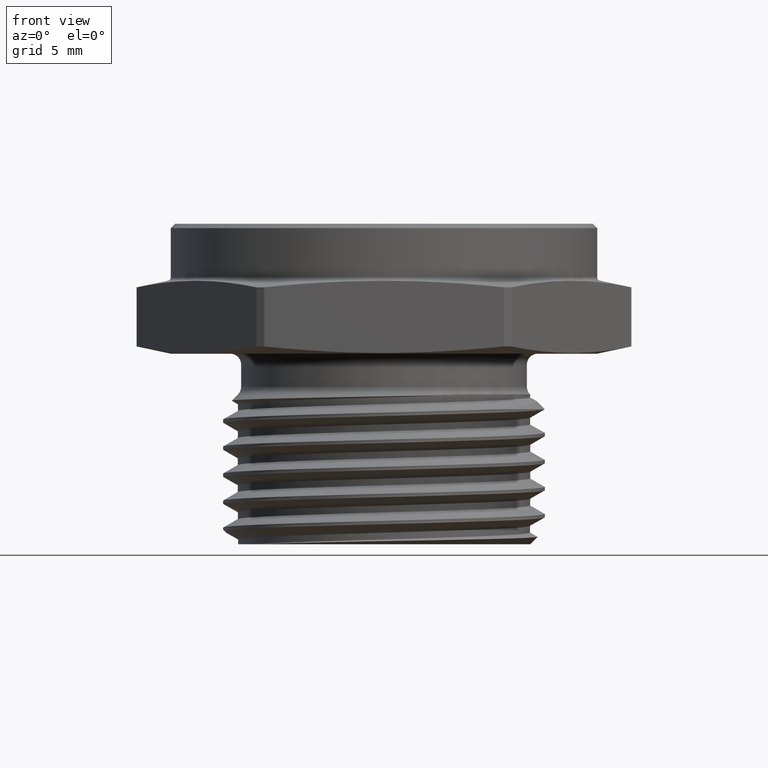
[diagram: clean part render]
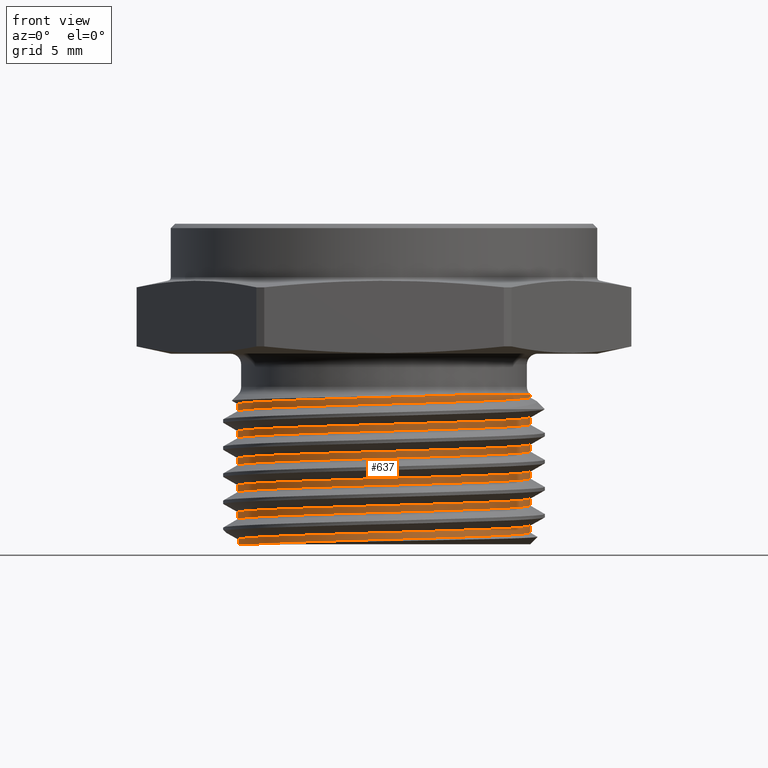
[diagram: same view with one face highlighted and labeled with its STEP entity id]
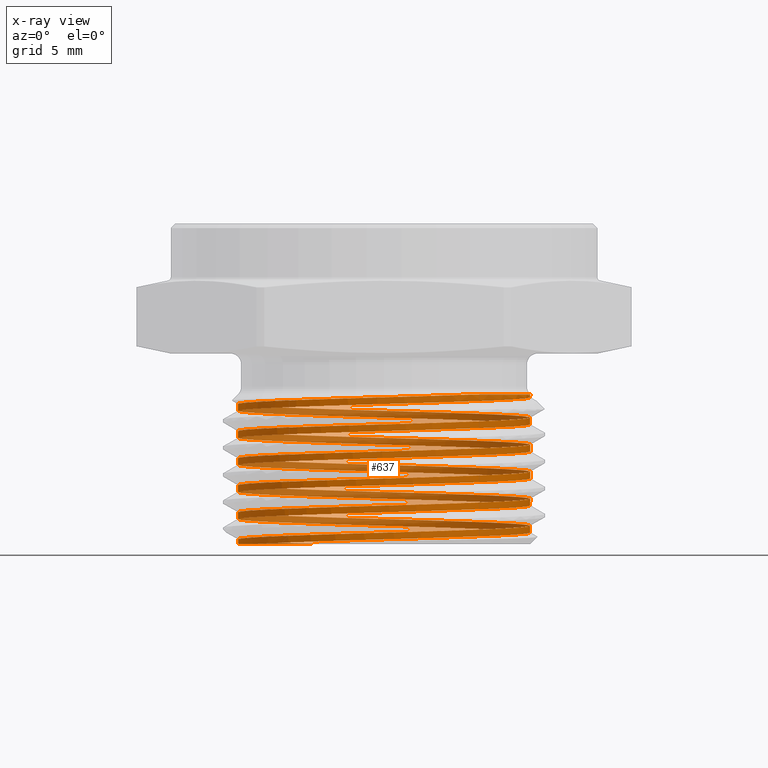
[diagram: x-ray of the same camera — body ghosted, the highlighted face saturated]
A machine part, front view. The second image highlights one B-rep face of the part: STEP entity #637.
The next image is the same camera in x-ray: the body ghosted, the highlighted face saturated — about 43% of this face is hidden behind the body in this view.
In plain terms, the highlighted face is a freeform B-spline surface patch.
Its self-contained STEP definition (entity closure, byte-faithful):
#26 = EDGE_LOOP ( 'NONE', ( #2800, #213, #2815, #2817, #2816 ) ) ;
#213 = ORIENTED_EDGE ( 'NONE', *, *, #2625, .T. ) ;
#292 =( BOUNDED_SURFACE ( )  B_SPLINE_SURFACE ( 1, 2, ( 
 ( #3007, #3008, #3005, #3004, #3003, #3002, #3001, #3000, #2999, #2998, #2997, #2996, #2995, #2994, #2993, #2992, #2991, #2990, #2989, #2988, #2987, #2986, #2985, #2984, #2983, #2982, #2981, #2980, #2979, #2978, #2977, #2976, #2975, #2974, #2973, #2972, #2971, #2970, #2969, #2968, #2967, #2966, #2965, #2964, #2963, #2962, #2961, #2960, #2959, #2958, #2957, #2956, #2955, #2954, #2953, #2952, #2951, #2950, #2949, #2948, #2947, #2946, #2945, #2944, #2943, #2942, #2941, #2940, #2938, #2937, #2936, #2935, #2934, #2933, #2932, #2931, #2930, #2929, #2928, #2927, #2926, #2925, #2924, #2923, #2922, #2921, #2920, #2919, #2918, #2917, #2916, #2915, #2914, #2913, #2912, #2911, #2910, #2909, #2908, #2907, #2906, #2905, #2904, #2903, #2901, #2900, #2899, #2898, #2897, #2896, #2895, #2894, #2893 ),
 ( #2892, #2891, #2890, #2889, #2888, #2887, #2886, #2885, #2884, #2883, #2882, #2881, #2880, #2879, #2878, #2877, #2876, #2875, #2874, #2873, #2872, #2871, #2869, #2868, #2867, #2866, #2865, #2864, #2863, #2862, #2861, #2860, #2859, #2858, #2857, #2856, #2855, #2854, #2852, #2850, #2849, #2848, #2847, #2846, #2845, #2844, #2843, #2842, #2841, #2840, #2839, #2838, #2835, #2834, #2833, #2832, #2831, #2830, #2829, #2828, #2827, #2824, #2823, #2821, #2819, #2818, #2826, #2825, #2822, #2254, #2252, #2406, #2405, #2404, #2403, #2402, #2401, #2400, #2399, #2398, #2397, #2396, #2395, #2394, #2393, #2392, #2391, #2390, #2389, #2388, #2387, #2386, #2385, #2384, #2383, #2382, #2381, #2380, #2379, #2378, #2377, #2376, #2375, #2374, #2373, #2372, #2371, #2370, #2369, #2368, #2367, #2366, #2365 ) ),
 .UNSPECIFIED., .F., .F., .F. ) 
 B_SPLINE_SURFACE_WITH_KNOTS ( ( 2, 2 ),
 ( 3, 2, 2, 2, 2, 2, 2, 2, 2, 2, 2, 2, 2, 2, 2, 2, 2, 2, 2, 2, 2, 2, 2, 2, 2, 2, 2, 2, 2, 2, 2, 2, 2, 2, 2, 2, 2, 2, 2, 2, 2, 2, 2, 2, 2, 2, 2, 2, 2, 2, 2, 2, 2, 2, 2, 2, 3 ),
 ( 0.0000000000000000000, 1.000000000000000000 ),
 ( 0.0000000000000000000, 0.01785714285714285600, 0.03571428571428571200, 0.05357142857142856800, 0.07142857142857142500, 0.08928571428571428800, 0.1071428571428571400, 0.1250000000000000000, 0.1428571428571428500, 0.1607142857142857300, 0.1785714285714285800, 0.1964285714285714200, 0.2142857142857142700, 0.2321428571428571500, 0.2500000000000000000, 0.2678571428571428500, 0.2857142857142857000, 0.3035714285714285500, 0.3214285714285714500, 0.3392857142857143000, 0.3571428571428571500, 0.3750000000000000000, 0.3928571428571428500, 0.4107142857142857000, 0.4285714285714285500, 0.4464285714285714500, 0.4642857142857143000, 0.4821428571428571500, 0.5000000000000000000, 0.5178571428571429000, 0.5357142857142857000, 0.5535714285714286000, 0.5714285714285714000, 0.5892857142857143000, 0.6071428571428571000, 0.6250000000000000000, 0.6428571428571429000, 0.6607142857142857000, 0.6785714285714286000, 0.6964285714285714000, 0.7142857142857143000, 0.7321428571428571000, 0.7500000000000000000, 0.7678571428571429000, 0.7857142857142857000, 0.8035714285714286000, 0.8214285714285714000, 0.8392857142857143000, 0.8571428571428571000, 0.8750000000000000000, 0.8928571428571429000, 0.9107142857142857000, 0.9285714285714286000, 0.9464285714285714000, 0.9642857142857143000, 0.9821428571428571000, 1.000000000000000000 ),
 .UNSPECIFIED. ) 
 GEOMETRIC_REPRESENTATION_ITEM ( )  RATIONAL_B_SPLINE_SURFACE ( (
 ( 1.000000000000000000, 0.9238795325112867400, 1.000000000000000000, 0.9238795325112867400, 1.000000000000000000, 0.9238795325112867400, 1.000000000000000000, 0.9238795325112867400, 1.000000000000000000, 0.9238795325112867400, 1.000000000000000000, 0.9238795325112867400, 1.000000000000000000, 0.9238795325112867400, 1.000000000000000000, 0.9238795325112867400, 1.000000000000000000, 0.9238795325112867400, 1.000000000000000000, 0.9238795325112867400, 1.000000000000000000, 0.9238795325112867400, 1.000000000000000000, 0.9238795325112867400, 1.000000000000000000, 0.9238795325112867400, 1.000000000000000000, 0.9238795325112867400, 1.000000000000000000, 0.9238795325112867400, 1.000000000000000000, 0.9238795325112867400, 1.000000000000000000, 0.9238795325112867400, 1.000000000000000000, 0.9238795325112867400, 1.000000000000000000, 0.9238795325112867400, 1.000000000000000000, 0.9238795325112867400, 1.000000000000000000, 0.9238795325112867400, 1.000000000000000000, 0.9238795325112867400, 1.000000000000000000, 0.9238795325112867400, 1.000000000000000000, 0.9238795325112867400, 1.000000000000000000, 0.9238795325112867400, 1.000000000000000000, 0.9238795325112867400, 1.000000000000000000, 0.9238795325112867400, 1.000000000000000000, 0.9238795325112867400, 1.000000000000000000, 0.9238795325112867400, 1.000000000000000000, 0.9238795325112867400, 1.000000000000000000, 0.9238795325112867400, 1.000000000000000000, 0.9238795325112867400, 1.000000000000000000, 0.9238795325112867400, 1.000000000000000000, 0.9238795325112867400, 1.000000000000000000, 0.9238795325112867400, 1.000000000000000000, 0.9238795325112867400, 1.000000000000000000, 0.9238795325112867400, 1.000000000000000000, 0.9238795325112867400, 1.000000000000000000, 0.9238795325112867400, 1.000000000000000000, 0.9238795325112867400, 1.000000000000000000, 0.9238795325112867400, 1.000000000000000000, 0.9238795325112867400, 1.000000000000000000, 0.9238795325112867400, 1.000000000000000000, 0.9238795325112867400, 1.000000000000000000, 0.9238795325112867400, 1.000000000000000000, 0.9238795325112867400, 1.000000000000000000, 0.9238795325112867400, 1.000000000000000000, 0.9238795325112867400, 1.000000000000000000, 0.9238795325112867400, 1.000000000000000000, 0.9238795325112867400, 1.000000000000000000, 0.9238795325112867400, 1.000000000000000000, 0.9238795325112867400, 1.000000000000000000, 0.9238795325112867400, 1.000000000000000000, 0.9238795325112867400, 1.000000000000000000, 0.9238795325112867400, 1.000000000000000000, 0.9238795325112867400, 1.000000000000000000),
 ( 1.000000000000000000, 0.9238795325112867400, 1.000000000000000000, 0.9238795325112867400, 1.000000000000000000, 0.9238795325112867400, 1.000000000000000000, 0.9238795325112867400, 1.000000000000000000, 0.9238795325112867400, 1.000000000000000000, 0.9238795325112867400, 1.000000000000000000, 0.9238795325112867400, 1.000000000000000000, 0.9238795325112867400, 1.000000000000000000, 0.9238795325112867400, 1.000000000000000000, 0.9238795325112867400, 1.000000000000000000, 0.9238795325112867400, 1.000000000000000000, 0.9238795325112867400, 1.000000000000000000, 0.9238795325112867400, 1.000000000000000000, 0.9238795325112867400, 1.000000000000000000, 0.9238795325112867400, 1.000000000000000000, 0.9238795325112867400, 1.000000000000000000, 0.9238795325112867400, 1.000000000000000000, 0.9238795325112867400, 1.000000000000000000, 0.9238795325112867400, 1.000000000000000000, 0.9238795325112867400, 1.000000000000000000, 0.9238795325112867400, 1.000000000000000000, 0.9238795325112867400, 1.000000000000000000, 0.9238795325112867400, 1.000000000000000000, 0.9238795325112867400, 1.000000000000000000, 0.9238795325112867400, 1.000000000000000000, 0.9238795325112867400, 1.000000000000000000, 0.9238795325112867400, 1.000000000000000000, 0.9238795325112867400, 1.000000000000000000, 0.9238795325112867400, 1.000000000000000000, 0.9238795325112867400, 1.000000000000000000, 0.9238795325112867400, 1.000000000000000000, 0.9238795325112867400, 1.000000000000000000, 0.9238795325112867400, 1.000000000000000000, 0.9238795325112867400, 1.000000000000000000, 0.9238795325112867400, 1.000000000000000000, 0.9238795325112867400, 1.000000000000000000, 0.9238795325112867400, 1.000000000000000000, 0.9238795325112867400, 1.000000000000000000, 0.9238795325112867400, 1.000000000000000000, 0.9238795325112867400, 1.000000000000000000, 0.9238795325112867400, 1.000000000000000000, 0.9238795325112867400, 1.000000000000000000, 0.9238795325112867400, 1.000000000000000000, 0.9238795325112867400, 1.000000000000000000, 0.9238795325112867400, 1.000000000000000000, 0.9238795325112867400, 1.000000000000000000, 0.9238795325112867400, 1.000000000000000000, 0.9238795325112867400, 1.000000000000000000, 0.9238795325112867400, 1.000000000000000000, 0.9238795325112867400, 1.000000000000000000, 0.9238795325112867400, 1.000000000000000000, 0.9238795325112867400, 1.000000000000000000, 0.9238795325112867400, 1.000000000000000000, 0.9238795325112867400, 1.000000000000000000, 0.9238795325112867400, 1.000000000000000000, 0.9238795325112867400, 1.000000000000000000) ) ) 
 REPRESENTATION_ITEM ( '' )  SURFACE ( )  );
#299 = B_SPLINE_CURVE_WITH_KNOTS ( 'NONE', 3,
 ( #1621, #1622, #1636, #1637, #1638, #1639, #1640, #1641, #1642, #1643 ),
 .UNSPECIFIED., .F., .F.,
 ( 4, 2, 2, 2, 4 ),
 ( 1.148216525281094400E-014, 0.001375977776665553100, 0.002751955553319622700, 0.004127933329973692800, 0.005503911106627762400 ),
 .UNSPECIFIED. ) ;
#325 = VERTEX_POINT ( 'NONE', #3093 ) ;
#337 = VERTEX_POINT ( 'NONE', #3080 ) ;
#550 = B_SPLINE_CURVE_WITH_KNOTS ( 'NONE', 3,
 ( #1909, #1910, #1938, #1939, #1940, #1941, #1942, #1943, #1944, #1945, #1946, #1947 ),
 .UNSPECIFIED., .F., .F.,
 ( 4, 2, 2, 2, 2, 4 ),
 ( 0.005503911106627762400, 0.007509756852031731900, 0.009515602597435701300, 0.01051852547013768700, 0.01152144834283967000, 0.01352729408824364000 ),
 .UNSPECIFIED. ) ;
#564 = B_SPLINE_CURVE_WITH_KNOTS ( 'NONE', 3,
 ( #754, #763, #775, #776, #777, #778, #779, #780, #781, #782, #783, #784, #785, #786, #787, #788, #789, #790 ),
 .UNSPECIFIED., .F., .F.,
 ( 4, 2, 2, 2, 2, 2, 2, 2, 4 ),
 ( 0.0000000000000000000, 0.003377808998260521100, 0.005066713497390780900, 0.005911165746955911500, 0.006755617996521042100, 0.008444522495651302400, 0.01013342699478156500, 0.01182233149391182500, 0.01351123599304208900 ),
 .UNSPECIFIED. ) ;
#566 =( BOUNDED_CURVE ( )  B_SPLINE_CURVE ( 2, ( #804, #805, #810, #811, #812, #813, #814, #815, #816, #817, #818, #819, #820, #821, #822, #823, #824, #825, #826, #827, #828, #829, #830, #831, #832, #833, #834, #835, #836, #837, #838, #839, #840, #841, #842, #843, #844, #845, #846, #847, #848, #849, #850, #851, #852, #853, #854, #855, #856, #857, #858, #859, #860, #861, #862, #863, #864, #865, #866, #867, #868, #869, #870, #871, #872, #873, #874, #875, #876, #877, #878, #879, #880, #881, #882, #883, #884, #885, #886, #887, #888, #889, #890, #891, #892, #893, #894, #895, #896, #897, #898 ),
 .UNSPECIFIED., .F., .F. ) 
 B_SPLINE_CURVE_WITH_KNOTS ( ( 3, 2, 2, 2, 2, 2, 2, 2, 2, 2, 2, 2, 2, 2, 2, 2, 2, 2, 2, 2, 2, 2, 2, 2, 2, 2, 2, 2, 2, 2, 2, 2, 2, 2, 2, 2, 2, 2, 2, 2, 2, 2, 2, 2, 2, 3 ),
 ( 0.1175275786737726100, 0.1250000000000000000, 0.1428571428571428500, 0.1607142857142857300, 0.1785714285714285800, 0.1964285714285714200, 0.2142857142857142700, 0.2321428571428571500, 0.2500000000000000000, 0.2678571428571428500, 0.2857142857142857000, 0.3035714285714285500, 0.3214285714285714500, 0.3392857142857143000, 0.3571428571428572100, 0.3750000000000000000, 0.3928571428571428500, 0.4107142857142857000, 0.4285714285714285500, 0.4464285714285714000, 0.4642857142857143000, 0.4821428571428571500, 0.4999999999999999400, 0.5178571428571429000, 0.5357142857142857000, 0.5535714285714286000, 0.5714285714285714000, 0.5892857142857144100, 0.6071428571428569800, 0.6250000000000000000, 0.6428571428571429000, 0.6607142857142857000, 0.6785714285714286000, 0.6964285714285714000, 0.7142857142857143000, 0.7321428571428571000, 0.7500000000000000000, 0.7678571428571429000, 0.7857142857142857000, 0.8035714285714286000, 0.8214285714285715100, 0.8392857142857143000, 0.8571428571428571000, 0.8750000000000000000, 0.8928571428571429000, 0.9073304622085162100 ),
 .UNSPECIFIED. ) 
 CURVE ( )  GEOMETRIC_REPRESENTATION_ITEM ( )  RATIONAL_B_SPLINE_CURVE ( ( 0.9629520908465139000, 0.9681469645409966900, 1.000000000000000000, 0.9238795325112867400, 1.000000000000000000, 0.9238795325112867400, 1.000000000000000000, 0.9238795325112867400, 1.000000000000000000, 0.9238795325112867400, 1.000000000000000000, 0.9238795325112867400, 1.000000000000000000, 0.9238795325112867400, 1.000000000000000000, 0.9238795325112867400, 1.000000000000000000, 0.9238795325112867400, 1.000000000000000000, 0.9238795325112867400, 1.000000000000000000, 0.9238795325112867400, 1.000000000000000000, 0.9238795325112867400, 1.000000000000000000, 0.9238795325112867400, 1.000000000000000000, 0.9238795325112867400, 1.000000000000000000, 0.9238795325112867400, 1.000000000000000000, 0.9238795325112867400, 1.000000000000000000, 0.9238795325112867400, 1.000000000000000000, 0.9238795325112867400, 1.000000000000000000, 0.9238795325112867400, 1.000000000000000000, 0.9238795325112867400, 1.000000000000000000, 0.9238795325112867400, 1.000000000000000000, 0.9238795325112867400, 1.000000000000000000, 0.9238795325112867400, 1.000000000000000000, 0.9238795325112867400, 1.000000000000000000, 0.9238795325112867400, 1.000000000000000000, 0.9238795325112867400, 1.000000000000000000, 0.9238795325112867400, 1.000000000000000000, 0.9238795325112867400, 1.000000000000000000, 0.9238795325112867400, 1.000000000000000000, 0.9238795325112867400, 1.000000000000000000, 0.9238795325112867400, 1.000000000000000000, 0.9238795325112867400, 1.000000000000000000, 0.9238795325112867400, 1.000000000000000000, 0.9238795325112867400, 1.000000000000000000, 0.9238795325112867400, 1.000000000000000000, 0.9238795325112867400, 1.000000000000000000, 0.9238795325112867400, 1.000000000000000000, 0.9238795325112867400, 1.000000000000000000, 0.9238795325112867400, 1.000000000000000000, 0.9238795325112867400, 1.000000000000000000, 0.9238795325112867400, 1.000000000000000000, 0.9238795325112867400, 1.000000000000000000, 0.9238795325112867400, 1.000000000000000000, 0.9238795325112867400, 1.000000000000000000, 0.9383039132321606700, 0.9766179091146716100 ) ) 
 REPRESENTATION_ITEM ( '' )  );
#567 =( BOUNDED_CURVE ( )  B_SPLINE_CURVE ( 2, ( #800, #809, #901, #902, #903, #904, #905, #906, #907, #908, #909, #910, #911, #912, #913, #914, #915, #916, #917, #918, #919, #920, #921, #922, #923, #924, #925, #926, #927, #928, #929, #930, #931, #932, #933, #934, #935, #936, #937, #938, #939, #940, #941, #942, #943, #944, #945, #946, #947, #948, #949, #950, #951, #952, #953, #954, #955, #956, #957, #958, #959, #960, #961, #962, #963, #964, #965, #966, #967, #968, #969, #970, #971, #972, #973, #974, #975, #976, #977, #978, #979, #980, #981, #982, #983, #984, #985, #986, #987, #988, #989 ),
 .UNSPECIFIED., .F., .F. ) 
 B_SPLINE_CURVE_WITH_KNOTS ( ( 3, 2, 2, 2, 2, 2, 2, 2, 2, 2, 2, 2, 2, 2, 2, 2, 2, 2, 2, 2, 2, 2, 2, 2, 2, 2, 2, 2, 2, 2, 2, 2, 2, 2, 2, 2, 2, 2, 2, 2, 2, 2, 2, 2, 2, 3 ),
 ( 0.1532418643880580600, 0.1607142857142857300, 0.1785714285714285800, 0.1964285714285714200, 0.2142857142857142700, 0.2321428571428571500, 0.2500000000000000000, 0.2678571428571428500, 0.2857142857142857000, 0.3035714285714285500, 0.3214285714285715100, 0.3392857142857143000, 0.3571428571428571500, 0.3750000000000000000, 0.3928571428571428500, 0.4107142857142857000, 0.4285714285714286000, 0.4464285714285715100, 0.4642857142857143000, 0.4821428571428572100, 0.5000000000000000000, 0.5178571428571429000, 0.5357142857142857000, 0.5535714285714284900, 0.5714285714285714000, 0.5892857142857143000, 0.6071428571428569800, 0.6250000000000000000, 0.6428571428571429000, 0.6607142857142857000, 0.6785714285714286000, 0.6964285714285714000, 0.7142857142857143000, 0.7321428571428571000, 0.7500000000000000000, 0.7678571428571429000, 0.7857142857142857000, 0.8035714285714286000, 0.8214285714285714000, 0.8392857142857143000, 0.8571428571428571000, 0.8750000000000000000, 0.8928571428571429000, 0.9107142857142857000, 0.9285714285714286000, 0.9430447479227714900 ),
 .UNSPECIFIED. ) 
 CURVE ( )  GEOMETRIC_REPRESENTATION_ITEM ( )  RATIONAL_B_SPLINE_CURVE ( ( 0.9629520908465134500, 0.9681469645409954700, 1.000000000000000000, 0.9238795325112867400, 1.000000000000000000, 0.9238795325112867400, 1.000000000000000000, 0.9238795325112867400, 1.000000000000000000, 0.9238795325112867400, 1.000000000000000000, 0.9238795325112867400, 1.000000000000000000, 0.9238795325112867400, 1.000000000000000000, 0.9238795325112867400, 1.000000000000000000, 0.9238795325112867400, 1.000000000000000000, 0.9238795325112867400, 1.000000000000000000, 0.9238795325112867400, 1.000000000000000000, 0.9238795325112867400, 1.000000000000000000, 0.9238795325112867400, 1.000000000000000000, 0.9238795325112867400, 1.000000000000000000, 0.9238795325112867400, 1.000000000000000000, 0.9238795325112867400, 1.000000000000000000, 0.9238795325112867400, 1.000000000000000000, 0.9238795325112867400, 1.000000000000000000, 0.9238795325112867400, 1.000000000000000000, 0.9238795325112867400, 1.000000000000000000, 0.9238795325112867400, 1.000000000000000000, 0.9238795325112867400, 1.000000000000000000, 0.9238795325112867400, 1.000000000000000000, 0.9238795325112867400, 1.000000000000000000, 0.9238795325112867400, 1.000000000000000000, 0.9238795325112867400, 1.000000000000000000, 0.9238795325112867400, 1.000000000000000000, 0.9238795325112867400, 1.000000000000000000, 0.9238795325112867400, 1.000000000000000000, 0.9238795325112867400, 1.000000000000000000, 0.9238795325112867400, 1.000000000000000000, 0.9238795325112867400, 1.000000000000000000, 0.9238795325112867400, 1.000000000000000000, 0.9238795325112867400, 1.000000000000000000, 0.9238795325112867400, 1.000000000000000000, 0.9238795325112867400, 1.000000000000000000, 0.9238795325112867400, 1.000000000000000000, 0.9238795325112867400, 1.000000000000000000, 0.9238795325112867400, 1.000000000000000000, 0.9238795325112867400, 1.000000000000000000, 0.9238795325112867400, 1.000000000000000000, 0.9238795325112867400, 1.000000000000000000, 0.9238795325112867400, 1.000000000000000000, 0.9238795325112867400, 1.000000000000000000, 0.9383039132322907900, 0.9766179091145099600 ) ) 
 REPRESENTATION_ITEM ( '' )  );
#637 = ADVANCED_FACE ( 'NONE', ( #2420 ), #292, .F. ) ;
#754 = CARTESIAN_POINT ( 'NONE',  ( -0.1492037028189109300, 0.3030071246111650200, -0.4400000000000000000 ) ) ;
#763 = CARTESIAN_POINT ( 'NONE',  ( -0.1890147711144294400, 0.2834037611242824500, -0.4400000000000002200 ) ) ;
#775 = CARTESIAN_POINT ( 'NONE',  ( -0.2247557210158694900, 0.2559701533585965700, -0.4399999999999999500 ) ) ;
#776 = CARTESIAN_POINT ( 'NONE',  ( -0.2685467306590564300, 0.2060289147480977300, -0.4400000000000001100 ) ) ;
#777 = CARTESIAN_POINT ( 'NONE',  ( -0.2814790052689279400, 0.1879808988361432700, -0.4399999999999997200 ) ) ;
#778 = CARTESIAN_POINT ( 'NONE',  ( -0.2981069891898482900, 0.1591550566421658100, -0.4399999999999997200 ) ) ;
#779 = CARTESIAN_POINT ( 'NONE',  ( -0.3031567438949532800, 0.1493094147462623300, -0.4399999999999999500 ) ) ;
#780 = CARTESIAN_POINT ( 'NONE',  ( -0.3122728817891805000, 0.1291625332669743600, -0.4400000000000001700 ) ) ;
#781 = CARTESIAN_POINT ( 'NONE',  ( -0.3163540447153721500, 0.1188156339210445600, -0.4400000000000001100 ) ) ;
#782 = CARTESIAN_POINT ( 'NONE',  ( -0.3269834591526901100, 0.08743440871809340900, -0.4399999999999999500 ) ) ;
#783 = CARTESIAN_POINT ( 'NONE',  ( -0.3319401619430457600, 0.06611103579738941700, -0.4400000000000002800 ) ) ;
#784 = CARTESIAN_POINT ( 'NONE',  ( -0.3376989867668088200, 0.02267894401531858300, -0.4400000000000002800 ) ) ;
#785 = CARTESIAN_POINT ( 'NONE',  ( -0.3384727710757796700, 0.0003933124522513960500, -0.4399999999999998900 ) ) ;
#786 = CARTESIAN_POINT ( 'NONE',  ( -0.3356351411467866600, -0.04373812389413782300, -0.4400000000000001700 ) ) ;
#787 = CARTESIAN_POINT ( 'NONE',  ( -0.3320337311292887400, -0.06571714052928158400, -0.4400000000000001100 ) ) ;
#788 = CARTESIAN_POINT ( 'NONE',  ( -0.3206150623667822200, -0.1084948060993084400, -0.4400000000000001700 ) ) ;
#789 = CARTESIAN_POINT ( 'NONE',  ( -0.3128088063546080000, -0.1292981686711485700, -0.4400000000000002800 ) ) ;
#790 = CARTESIAN_POINT ( 'NONE',  ( -0.3030071246111668000, -0.1492037028189072400, -0.4400000000000001100 ) ) ;
#800 = CARTESIAN_POINT ( 'NONE',  ( -0.3030071246111668000, -0.1492037028189072400, -0.4400000000000001100 ) ) ;
#804 = CARTESIAN_POINT ( 'NONE',  ( -0.1492037028189109300, 0.3030071246111650200, -0.4400000000000000000 ) ) ;
#805 = CARTESIAN_POINT ( 'NONE',  ( -0.1993224943717656400, 0.2783281363197474000, -0.4383151779400899000 ) ) ;
#809 = CARTESIAN_POINT ( 'NONE',  ( -0.2783281363197489000, -0.1993224943717641600, -0.4383151779400899500 ) ) ;
#810 = CARTESIAN_POINT ( 'NONE',  ( -0.2388253153457568800, 0.2388253153457559100, -0.4367553256649072100 ) ) ;
#811 = CARTESIAN_POINT ( 'NONE',  ( -0.3377500000000002200, 0.1399006306915122900, -0.4328490756649071600 ) ) ;
#812 = CARTESIAN_POINT ( 'NONE',  ( -0.3377499999999999900, -7.913180987754949500E-016, -0.4289428256649072100 ) ) ;
#813 = CARTESIAN_POINT ( 'NONE',  ( -0.3377499999999996100, -0.1399006306915136500, -0.4250365756649072100 ) ) ;
#814 = CARTESIAN_POINT ( 'NONE',  ( -0.2388253153457558500, -0.2388253153457569300, -0.4211303256649072100 ) ) ;
#815 = CARTESIAN_POINT ( 'NONE',  ( -0.1399006306915121000, -0.3377500000000003300, -0.4172240756649072100 ) ) ;
#816 = CARTESIAN_POINT ( 'NONE',  ( 7.706368759548940400E-016, -0.3377499999999999900, -0.4133178256649072100 ) ) ;
#817 = CARTESIAN_POINT ( 'NONE',  ( 0.1399006306915136200, -0.3377499999999996100, -0.4094115756649072100 ) ) ;
#818 = CARTESIAN_POINT ( 'NONE',  ( 0.2388253153457569300, -0.2388253153457558500, -0.4055053256649072700 ) ) ;
#819 = CARTESIAN_POINT ( 'NONE',  ( 0.3377500000000003300, -0.1399006306915121000, -0.4015990756649072100 ) ) ;
#820 = CARTESIAN_POINT ( 'NONE',  ( 0.3377499999999999900, 7.499556531342931300E-016, -0.3976928256649072100 ) ) ;
#821 = CARTESIAN_POINT ( 'NONE',  ( 0.3377499999999997200, 0.1399006306915135700, -0.3937865756649072100 ) ) ;
#822 = CARTESIAN_POINT ( 'NONE',  ( 0.2388253153457559100, 0.2388253153457569300, -0.3898803256649072100 ) ) ;
#823 = CARTESIAN_POINT ( 'NONE',  ( 0.1399006306915122600, 0.3377500000000002200, -0.3859740756649072700 ) ) ;
#824 = CARTESIAN_POINT ( 'NONE',  ( -7.292744303136922200E-016, 0.3377499999999999900, -0.3820678256649072100 ) ) ;
#825 = CARTESIAN_POINT ( 'NONE',  ( -0.1399006306915137300, 0.3377499999999995500, -0.3781615756649071600 ) ) ;
#826 = CARTESIAN_POINT ( 'NONE',  ( -0.2388253153457568800, 0.2388253153457559100, -0.3742553256649072100 ) ) ;
#827 = CARTESIAN_POINT ( 'NONE',  ( -0.3377500000000002200, 0.1399006306915122900, -0.3703490756649072100 ) ) ;
#828 = CARTESIAN_POINT ( 'NONE',  ( -0.3377499999999999900, -7.913180987754949500E-016, -0.3664428256649071600 ) ) ;
#829 = CARTESIAN_POINT ( 'NONE',  ( -0.3377499999999996100, -0.1399006306915136500, -0.3625365756649071600 ) ) ;
#830 = CARTESIAN_POINT ( 'NONE',  ( -0.2388253153457558500, -0.2388253153457569300, -0.3586303256649072100 ) ) ;
#831 = CARTESIAN_POINT ( 'NONE',  ( -0.1399006306915121000, -0.3377500000000003300, -0.3547240756649071000 ) ) ;
#832 = CARTESIAN_POINT ( 'NONE',  ( 7.706368759548940400E-016, -0.3377499999999999900, -0.3508178256649072100 ) ) ;
#833 = CARTESIAN_POINT ( 'NONE',  ( 0.1399006306915136200, -0.3377499999999996100, -0.3469115756649072100 ) ) ;
#834 = CARTESIAN_POINT ( 'NONE',  ( 0.2388253153457569300, -0.2388253153457558500, -0.3430053256649072100 ) ) ;
#835 = CARTESIAN_POINT ( 'NONE',  ( 0.3377500000000003300, -0.1399006306915121000, -0.3390990756649072700 ) ) ;
#836 = CARTESIAN_POINT ( 'NONE',  ( 0.3377499999999999900, 7.499556531342931300E-016, -0.3351928256649072100 ) ) ;
#837 = CARTESIAN_POINT ( 'NONE',  ( 0.3377499999999997200, 0.1399006306915135700, -0.3312865756649072100 ) ) ;
#838 = CARTESIAN_POINT ( 'NONE',  ( 0.2388253153457559100, 0.2388253153457569300, -0.3273803256649072700 ) ) ;
#839 = CARTESIAN_POINT ( 'NONE',  ( 0.1399006306915122600, 0.3377500000000002200, -0.3234740756649072100 ) ) ;
#840 = CARTESIAN_POINT ( 'NONE',  ( -7.292744303136922200E-016, 0.3377499999999999900, -0.3195678256649072100 ) ) ;
#841 = CARTESIAN_POINT ( 'NONE',  ( -0.1399006306915137300, 0.3377499999999995500, -0.3156615756649072100 ) ) ;
#842 = CARTESIAN_POINT ( 'NONE',  ( -0.2388253153457568800, 0.2388253153457559100, -0.3117553256649072100 ) ) ;
#843 = CARTESIAN_POINT ( 'NONE',  ( -0.3377500000000002200, 0.1399006306915122900, -0.3078490756649072100 ) ) ;
#844 = CARTESIAN_POINT ( 'NONE',  ( -0.3377499999999999900, -7.913180987754949500E-016, -0.3039428256649072100 ) ) ;
#845 = CARTESIAN_POINT ( 'NONE',  ( -0.3377499999999996100, -0.1399006306915136500, -0.3000365756649072700 ) ) ;
#846 = CARTESIAN_POINT ( 'NONE',  ( -0.2388253153457558500, -0.2388253153457569300, -0.2961303256649072100 ) ) ;
#847 = CARTESIAN_POINT ( 'NONE',  ( -0.1399006306915121000, -0.3377500000000003300, -0.2922240756649072700 ) ) ;
#848 = CARTESIAN_POINT ( 'NONE',  ( 7.706368759548940400E-016, -0.3377499999999999900, -0.2883178256649072100 ) ) ;
#849 = CARTESIAN_POINT ( 'NONE',  ( 0.1399006306915136200, -0.3377499999999996100, -0.2844115756649072100 ) ) ;
#850 = CARTESIAN_POINT ( 'NONE',  ( 0.2388253153457569300, -0.2388253153457558500, -0.2805053256649072100 ) ) ;
#851 = CARTESIAN_POINT ( 'NONE',  ( 0.3377500000000003300, -0.1399006306915121000, -0.2765990756649072100 ) ) ;
#852 = CARTESIAN_POINT ( 'NONE',  ( 0.3377499999999999900, 7.499556531342931300E-016, -0.2726928256649072100 ) ) ;
#853 = CARTESIAN_POINT ( 'NONE',  ( 0.3377499999999997200, 0.1399006306915135700, -0.2687865756649072100 ) ) ;
#854 = CARTESIAN_POINT ( 'NONE',  ( 0.2388253153457559100, 0.2388253153457569300, -0.2648803256649072100 ) ) ;
#855 = CARTESIAN_POINT ( 'NONE',  ( 0.1399006306915122600, 0.3377500000000002200, -0.2609740756649072100 ) ) ;
#856 = CARTESIAN_POINT ( 'NONE',  ( -7.292744303136922200E-016, 0.3377499999999999900, -0.2570678256649072100 ) ) ;
#857 = CARTESIAN_POINT ( 'NONE',  ( -0.1399006306915137300, 0.3377499999999995500, -0.2531615756649072700 ) ) ;
#858 = CARTESIAN_POINT ( 'NONE',  ( -0.2388253153457568800, 0.2388253153457559100, -0.2492553256649072100 ) ) ;
#859 = CARTESIAN_POINT ( 'NONE',  ( -0.3377500000000002200, 0.1399006306915122900, -0.2453490756649072400 ) ) ;
#860 = CARTESIAN_POINT ( 'NONE',  ( -0.3377499999999999900, -7.913180987754949500E-016, -0.2414428256649072100 ) ) ;
#861 = CARTESIAN_POINT ( 'NONE',  ( -0.3377499999999996100, -0.1399006306915136500, -0.2375365756649072100 ) ) ;
#862 = CARTESIAN_POINT ( 'NONE',  ( -0.2388253153457558500, -0.2388253153457569300, -0.2336303256649072100 ) ) ;
#863 = CARTESIAN_POINT ( 'NONE',  ( -0.1399006306915121000, -0.3377500000000003300, -0.2297240756649072100 ) ) ;
#864 = CARTESIAN_POINT ( 'NONE',  ( 7.706368759548940400E-016, -0.3377499999999999900, -0.2258178256649072100 ) ) ;
#865 = CARTESIAN_POINT ( 'NONE',  ( 0.1399006306915136200, -0.3377499999999996100, -0.2219115756649072100 ) ) ;
#866 = CARTESIAN_POINT ( 'NONE',  ( 0.2388253153457569300, -0.2388253153457558500, -0.2180053256649071800 ) ) ;
#867 = CARTESIAN_POINT ( 'NONE',  ( 0.3377500000000003300, -0.1399006306915121000, -0.2140990756649073000 ) ) ;
#868 = CARTESIAN_POINT ( 'NONE',  ( 0.3377499999999999900, 7.499556531342931300E-016, -0.2101928256649072100 ) ) ;
#869 = CARTESIAN_POINT ( 'NONE',  ( 0.3377499999999997200, 0.1399006306915135700, -0.2062865756649072100 ) ) ;
#870 = CARTESIAN_POINT ( 'NONE',  ( 0.2388253153457559100, 0.2388253153457569300, -0.2023803256649072100 ) ) ;
#871 = CARTESIAN_POINT ( 'NONE',  ( 0.1399006306915122600, 0.3377500000000002200, -0.1984740756649071800 ) ) ;
#872 = CARTESIAN_POINT ( 'NONE',  ( -7.292744303136922200E-016, 0.3377499999999999900, -0.1945678256649072100 ) ) ;
#873 = CARTESIAN_POINT ( 'NONE',  ( -0.1399006306915137300, 0.3377499999999995500, -0.1906615756649072100 ) ) ;
#874 = CARTESIAN_POINT ( 'NONE',  ( -0.2388253153457568800, 0.2388253153457559100, -0.1867553256649072100 ) ) ;
#875 = CARTESIAN_POINT ( 'NONE',  ( -0.3377500000000002200, 0.1399006306915122900, -0.1828490756649072400 ) ) ;
#876 = CARTESIAN_POINT ( 'NONE',  ( -0.3377499999999999900, -7.913180987754949500E-016, -0.1789428256649071800 ) ) ;
#877 = CARTESIAN_POINT ( 'NONE',  ( -0.3377499999999996100, -0.1399006306915136500, -0.1750365756649073000 ) ) ;
#878 = CARTESIAN_POINT ( 'NONE',  ( -0.2388253153457558500, -0.2388253153457569300, -0.1711303256649072400 ) ) ;
#879 = CARTESIAN_POINT ( 'NONE',  ( -0.1399006306915121000, -0.3377500000000003300, -0.1672240756649071800 ) ) ;
#880 = CARTESIAN_POINT ( 'NONE',  ( 7.706368759548940400E-016, -0.3377499999999999900, -0.1633178256649072100 ) ) ;
#881 = CARTESIAN_POINT ( 'NONE',  ( 0.1399006306915136200, -0.3377499999999996100, -0.1594115756649072400 ) ) ;
#882 = CARTESIAN_POINT ( 'NONE',  ( 0.2388253153457569300, -0.2388253153457558500, -0.1555053256649071800 ) ) ;
#883 = CARTESIAN_POINT ( 'NONE',  ( 0.3377500000000003300, -0.1399006306915121000, -0.1515990756649072100 ) ) ;
#884 = CARTESIAN_POINT ( 'NONE',  ( 0.3377499999999999900, 7.499556531342931300E-016, -0.1476928256649072100 ) ) ;
#885 = CARTESIAN_POINT ( 'NONE',  ( 0.3377499999999997200, 0.1399006306915135700, -0.1437865756649072400 ) ) ;
#886 = CARTESIAN_POINT ( 'NONE',  ( 0.2388253153457559100, 0.2388253153457569300, -0.1398803256649071800 ) ) ;
#887 = CARTESIAN_POINT ( 'NONE',  ( 0.1399006306915122600, 0.3377500000000002200, -0.1359740756649072400 ) ) ;
#888 = CARTESIAN_POINT ( 'NONE',  ( -7.292744303136922200E-016, 0.3377499999999999900, -0.1320678256649072400 ) ) ;
#889 = CARTESIAN_POINT ( 'NONE',  ( -0.1399006306915137300, 0.3377499999999995500, -0.1281615756649071800 ) ) ;
#890 = CARTESIAN_POINT ( 'NONE',  ( -0.2388253153457568800, 0.2388253153457559100, -0.1242553256649072100 ) ) ;
#891 = CARTESIAN_POINT ( 'NONE',  ( -0.3377500000000002200, 0.1399006306915122900, -0.1203490756649072300 ) ) ;
#892 = CARTESIAN_POINT ( 'NONE',  ( -0.3377499999999999900, -7.913180987754949500E-016, -0.1164428256649072500 ) ) ;
#893 = CARTESIAN_POINT ( 'NONE',  ( -0.3377499999999996100, -0.1399006306915136500, -0.1125365756649072000 ) ) ;
#894 = CARTESIAN_POINT ( 'NONE',  ( -0.2388253153457558500, -0.2388253153457569300, -0.1086303256649072300 ) ) ;
#895 = CARTESIAN_POINT ( 'NONE',  ( -0.1399006306915121000, -0.3377500000000003300, -0.1047240756649072400 ) ) ;
#896 = CARTESIAN_POINT ( 'NONE',  ( 7.706368759548940400E-016, -0.3377499999999999900, -0.1008178256649072000 ) ) ;
#897 = CARTESIAN_POINT ( 'NONE',  ( 0.1116471554452995900, -0.3377499999999997200, -0.09770045801043345000 ) ) ;
#898 = CARTESIAN_POINT ( 'NONE',  ( 0.2012982638886934600, -0.2712085386845293800, -0.09442766952966351300 ) ) ;
#901 = CARTESIAN_POINT ( 'NONE',  ( -0.2388253153457558500, -0.2388253153457569300, -0.4367553256649072100 ) ) ;
#902 = CARTESIAN_POINT ( 'NONE',  ( -0.1399006306915121000, -0.3377500000000003300, -0.4328490756649071600 ) ) ;
#903 = CARTESIAN_POINT ( 'NONE',  ( 7.706368759548940400E-016, -0.3377499999999999900, -0.4289428256649072100 ) ) ;
#904 = CARTESIAN_POINT ( 'NONE',  ( 0.1399006306915136200, -0.3377499999999996100, -0.4250365756649072100 ) ) ;
#905 = CARTESIAN_POINT ( 'NONE',  ( 0.2388253153457569300, -0.2388253153457558500, -0.4211303256649071600 ) ) ;
#906 = CARTESIAN_POINT ( 'NONE',  ( 0.3377500000000003300, -0.1399006306915121000, -0.4172240756649072100 ) ) ;
#907 = CARTESIAN_POINT ( 'NONE',  ( 0.3377499999999999900, 7.499556531342931300E-016, -0.4133178256649072100 ) ) ;
#908 = CARTESIAN_POINT ( 'NONE',  ( 0.3377499999999997200, 0.1399006306915135700, -0.4094115756649071600 ) ) ;
#909 = CARTESIAN_POINT ( 'NONE',  ( 0.2388253153457559100, 0.2388253153457569300, -0.4055053256649071600 ) ) ;
#910 = CARTESIAN_POINT ( 'NONE',  ( 0.1399006306915122600, 0.3377500000000002200, -0.4015990756649072100 ) ) ;
#911 = CARTESIAN_POINT ( 'NONE',  ( -7.292744303136922200E-016, 0.3377499999999999900, -0.3976928256649072100 ) ) ;
#912 = CARTESIAN_POINT ( 'NONE',  ( -0.1399006306915137300, 0.3377499999999995500, -0.3937865756649072100 ) ) ;
#913 = CARTESIAN_POINT ( 'NONE',  ( -0.2388253153457568800, 0.2388253153457559100, -0.3898803256649072100 ) ) ;
#914 = CARTESIAN_POINT ( 'NONE',  ( -0.3377500000000002200, 0.1399006306915122900, -0.3859740756649072700 ) ) ;
#915 = CARTESIAN_POINT ( 'NONE',  ( -0.3377499999999999900, -7.913180987754949500E-016, -0.3820678256649072100 ) ) ;
#916 = CARTESIAN_POINT ( 'NONE',  ( -0.3377499999999996100, -0.1399006306915136500, -0.3781615756649071600 ) ) ;
#917 = CARTESIAN_POINT ( 'NONE',  ( -0.2388253153457558500, -0.2388253153457569300, -0.3742553256649072100 ) ) ;
#918 = CARTESIAN_POINT ( 'NONE',  ( -0.1399006306915121000, -0.3377500000000003300, -0.3703490756649072100 ) ) ;
#919 = CARTESIAN_POINT ( 'NONE',  ( 7.706368759548940400E-016, -0.3377499999999999900, -0.3664428256649071600 ) ) ;
#920 = CARTESIAN_POINT ( 'NONE',  ( 0.1399006306915136200, -0.3377499999999996100, -0.3625365756649071600 ) ) ;
#921 = CARTESIAN_POINT ( 'NONE',  ( 0.2388253153457569300, -0.2388253153457558500, -0.3586303256649072100 ) ) ;
#922 = CARTESIAN_POINT ( 'NONE',  ( 0.3377500000000003300, -0.1399006306915121000, -0.3547240756649071000 ) ) ;
#923 = CARTESIAN_POINT ( 'NONE',  ( 0.3377499999999999900, 7.499556531342931300E-016, -0.3508178256649072100 ) ) ;
#924 = CARTESIAN_POINT ( 'NONE',  ( 0.3377499999999997200, 0.1399006306915135700, -0.3469115756649072100 ) ) ;
#925 = CARTESIAN_POINT ( 'NONE',  ( 0.2388253153457559100, 0.2388253153457569300, -0.3430053256649071600 ) ) ;
#926 = CARTESIAN_POINT ( 'NONE',  ( 0.1399006306915122600, 0.3377500000000002200, -0.3390990756649071600 ) ) ;
#927 = CARTESIAN_POINT ( 'NONE',  ( -7.292744303136922200E-016, 0.3377499999999999900, -0.3351928256649072100 ) ) ;
#928 = CARTESIAN_POINT ( 'NONE',  ( -0.1399006306915137300, 0.3377499999999995500, -0.3312865756649071600 ) ) ;
#929 = CARTESIAN_POINT ( 'NONE',  ( -0.2388253153457568800, 0.2388253153457559100, -0.3273803256649072700 ) ) ;
#930 = CARTESIAN_POINT ( 'NONE',  ( -0.3377500000000002200, 0.1399006306915122900, -0.3234740756649072100 ) ) ;
#931 = CARTESIAN_POINT ( 'NONE',  ( -0.3377499999999999900, -7.913180987754949500E-016, -0.3195678256649072100 ) ) ;
#932 = CARTESIAN_POINT ( 'NONE',  ( -0.3377499999999996100, -0.1399006306915136500, -0.3156615756649072100 ) ) ;
#933 = CARTESIAN_POINT ( 'NONE',  ( -0.2388253153457558500, -0.2388253153457569300, -0.3117553256649072100 ) ) ;
#934 = CARTESIAN_POINT ( 'NONE',  ( -0.1399006306915121000, -0.3377500000000003300, -0.3078490756649072100 ) ) ;
#935 = CARTESIAN_POINT ( 'NONE',  ( 7.706368759548940400E-016, -0.3377499999999999900, -0.3039428256649072100 ) ) ;
#936 = CARTESIAN_POINT ( 'NONE',  ( 0.1399006306915136200, -0.3377499999999996100, -0.3000365756649072700 ) ) ;
#937 = CARTESIAN_POINT ( 'NONE',  ( 0.2388253153457569300, -0.2388253153457558500, -0.2961303256649072100 ) ) ;
#938 = CARTESIAN_POINT ( 'NONE',  ( 0.3377500000000003300, -0.1399006306915121000, -0.2922240756649072100 ) ) ;
#939 = CARTESIAN_POINT ( 'NONE',  ( 0.3377499999999999900, 7.499556531342931300E-016, -0.2883178256649072100 ) ) ;
#940 = CARTESIAN_POINT ( 'NONE',  ( 0.3377499999999997200, 0.1399006306915135700, -0.2844115756649072100 ) ) ;
#941 = CARTESIAN_POINT ( 'NONE',  ( 0.2388253153457559100, 0.2388253153457569300, -0.2805053256649072100 ) ) ;
#942 = CARTESIAN_POINT ( 'NONE',  ( 0.1399006306915122600, 0.3377500000000002200, -0.2765990756649072100 ) ) ;
#943 = CARTESIAN_POINT ( 'NONE',  ( -7.292744303136922200E-016, 0.3377499999999999900, -0.2726928256649072100 ) ) ;
#944 = CARTESIAN_POINT ( 'NONE',  ( -0.1399006306915137300, 0.3377499999999995500, -0.2687865756649072100 ) ) ;
#945 = CARTESIAN_POINT ( 'NONE',  ( -0.2388253153457568800, 0.2388253153457559100, -0.2648803256649072100 ) ) ;
#946 = CARTESIAN_POINT ( 'NONE',  ( -0.3377500000000002200, 0.1399006306915122900, -0.2609740756649072100 ) ) ;
#947 = CARTESIAN_POINT ( 'NONE',  ( -0.3377499999999999900, -7.913180987754949500E-016, -0.2570678256649072100 ) ) ;
#948 = CARTESIAN_POINT ( 'NONE',  ( -0.3377499999999996100, -0.1399006306915136500, -0.2531615756649072100 ) ) ;
#949 = CARTESIAN_POINT ( 'NONE',  ( -0.2388253153457558500, -0.2388253153457569300, -0.2492553256649072100 ) ) ;
#950 = CARTESIAN_POINT ( 'NONE',  ( -0.1399006306915121000, -0.3377500000000003300, -0.2453490756649071800 ) ) ;
#951 = CARTESIAN_POINT ( 'NONE',  ( 7.706368759548940400E-016, -0.3377499999999999900, -0.2414428256649072100 ) ) ;
#952 = CARTESIAN_POINT ( 'NONE',  ( 0.1399006306915136200, -0.3377499999999996100, -0.2375365756649072100 ) ) ;
#953 = CARTESIAN_POINT ( 'NONE',  ( 0.2388253153457569300, -0.2388253153457558500, -0.2336303256649071800 ) ) ;
#954 = CARTESIAN_POINT ( 'NONE',  ( 0.3377500000000003300, -0.1399006306915121000, -0.2297240756649072100 ) ) ;
#955 = CARTESIAN_POINT ( 'NONE',  ( 0.3377499999999999900, 7.499556531342931300E-016, -0.2258178256649071800 ) ) ;
#956 = CARTESIAN_POINT ( 'NONE',  ( 0.3377499999999997200, 0.1399006306915135700, -0.2219115756649072100 ) ) ;
#957 = CARTESIAN_POINT ( 'NONE',  ( 0.2388253153457559100, 0.2388253153457569300, -0.2180053256649071800 ) ) ;
#958 = CARTESIAN_POINT ( 'NONE',  ( 0.1399006306915122600, 0.3377500000000002200, -0.2140990756649072100 ) ) ;
#959 = CARTESIAN_POINT ( 'NONE',  ( -7.292744303136922200E-016, 0.3377499999999999900, -0.2101928256649072100 ) ) ;
#960 = CARTESIAN_POINT ( 'NONE',  ( -0.1399006306915137300, 0.3377499999999995500, -0.2062865756649071800 ) ) ;
#961 = CARTESIAN_POINT ( 'NONE',  ( -0.2388253153457568800, 0.2388253153457559100, -0.2023803256649072100 ) ) ;
#962 = CARTESIAN_POINT ( 'NONE',  ( -0.3377500000000002200, 0.1399006306915122900, -0.1984740756649072400 ) ) ;
#963 = CARTESIAN_POINT ( 'NONE',  ( -0.3377499999999999900, -7.913180987754949500E-016, -0.1945678256649071800 ) ) ;
#964 = CARTESIAN_POINT ( 'NONE',  ( -0.3377499999999996100, -0.1399006306915136500, -0.1906615756649072100 ) ) ;
#965 = CARTESIAN_POINT ( 'NONE',  ( -0.2388253153457558500, -0.2388253153457569300, -0.1867553256649072100 ) ) ;
#966 = CARTESIAN_POINT ( 'NONE',  ( -0.1399006306915121000, -0.3377500000000003300, -0.1828490756649071800 ) ) ;
#967 = CARTESIAN_POINT ( 'NONE',  ( 7.706368759548940400E-016, -0.3377499999999999900, -0.1789428256649071800 ) ) ;
#968 = CARTESIAN_POINT ( 'NONE',  ( 0.1399006306915136200, -0.3377499999999996100, -0.1750365756649073000 ) ) ;
#969 = CARTESIAN_POINT ( 'NONE',  ( 0.2388253153457569300, -0.2388253153457558500, -0.1711303256649071600 ) ) ;
#970 = CARTESIAN_POINT ( 'NONE',  ( 0.3377500000000003300, -0.1399006306915121000, -0.1672240756649071800 ) ) ;
#971 = CARTESIAN_POINT ( 'NONE',  ( 0.3377499999999999900, 7.499556531342931300E-016, -0.1633178256649072100 ) ) ;
#972 = CARTESIAN_POINT ( 'NONE',  ( 0.3377499999999997200, 0.1399006306915135700, -0.1594115756649072400 ) ) ;
#973 = CARTESIAN_POINT ( 'NONE',  ( 0.2388253153457559100, 0.2388253153457569300, -0.1555053256649071800 ) ) ;
#974 = CARTESIAN_POINT ( 'NONE',  ( 0.1399006306915122600, 0.3377500000000002200, -0.1515990756649072100 ) ) ;
#975 = CARTESIAN_POINT ( 'NONE',  ( -7.292744303136922200E-016, 0.3377499999999999900, -0.1476928256649072100 ) ) ;
#976 = CARTESIAN_POINT ( 'NONE',  ( -0.1399006306915137300, 0.3377499999999995500, -0.1437865756649071800 ) ) ;
#977 = CARTESIAN_POINT ( 'NONE',  ( -0.2388253153457568800, 0.2388253153457559100, -0.1398803256649071800 ) ) ;
#978 = CARTESIAN_POINT ( 'NONE',  ( -0.3377500000000002200, 0.1399006306915122900, -0.1359740756649072400 ) ) ;
#979 = CARTESIAN_POINT ( 'NONE',  ( -0.3377499999999999900, -7.913180987754949500E-016, -0.1320678256649072400 ) ) ;
#980 = CARTESIAN_POINT ( 'NONE',  ( -0.3377499999999996100, -0.1399006306915136500, -0.1281615756649071800 ) ) ;
#981 = CARTESIAN_POINT ( 'NONE',  ( -0.2388253153457558500, -0.2388253153457569300, -0.1242553256649072100 ) ) ;
#982 = CARTESIAN_POINT ( 'NONE',  ( -0.1399006306915121000, -0.3377500000000003300, -0.1203490756649072300 ) ) ;
#983 = CARTESIAN_POINT ( 'NONE',  ( 7.706368759548940400E-016, -0.3377499999999999900, -0.1164428256649071800 ) ) ;
#984 = CARTESIAN_POINT ( 'NONE',  ( 0.1399006306915136200, -0.3377499999999996100, -0.1125365756649072000 ) ) ;
#985 = CARTESIAN_POINT ( 'NONE',  ( 0.2388253153457569300, -0.2388253153457558500, -0.1086303256649072300 ) ) ;
#986 = CARTESIAN_POINT ( 'NONE',  ( 0.3377500000000003300, -0.1399006306915121000, -0.1047240756649071700 ) ) ;
#987 = CARTESIAN_POINT ( 'NONE',  ( 0.3377499999999999900, 7.499556531342931300E-016, -0.1008178256649072000 ) ) ;
#988 = CARTESIAN_POINT ( 'NONE',  ( 0.3377499999999996600, 0.1116471554450485200, -0.09770045801044047200 ) ) ;
#989 = CARTESIAN_POINT ( 'NONE',  ( 0.2712085386847992200, 0.2012982638883300500, -0.09442766952967679400 ) ) ;
#1495 = CARTESIAN_POINT ( 'NONE',  ( -0.3030071246111668000, -0.1492037028189072400, -0.4400000000000001100 ) ) ;
#1499 = CARTESIAN_POINT ( 'NONE',  ( -0.1492037028189109300, 0.3030071246111650200, -0.4400000000000000000 ) ) ;
#1500 = CARTESIAN_POINT ( 'NONE',  ( 0.2712085386847992200, 0.2012982638883300500, -0.09442766952967679400 ) ) ;
#1621 = CARTESIAN_POINT ( 'NONE',  ( 0.2712085386847992200, 0.2012982638883300500, -0.09442766952967679400 ) ) ;
#1622 = CARTESIAN_POINT ( 'NONE',  ( 0.2819823000572019800, 0.1867828079599029000, -0.09442766952966348500 ) ) ;
#1636 = CARTESIAN_POINT ( 'NONE',  ( 0.2915949579920098500, 0.1713717549989620100, -0.09442766952966358300 ) ) ;
#1637 = CARTESIAN_POINT ( 'NONE',  ( 0.3080850618618823400, 0.1395689528345984400, -0.09442766952966356900 ) ) ;
#1638 = CARTESIAN_POINT ( 'NONE',  ( 0.3150069404035227300, 0.1231434017134462200, -0.09442766952966355500 ) ) ;
#1639 = CARTESIAN_POINT ( 'NONE',  ( 0.3262318694409122600, 0.08925490042028626200, -0.09442766952966351300 ) ) ;
#1640 = CARTESIAN_POINT ( 'NONE',  ( 0.3305501554211427400, 0.07166987415243372700, -0.09442766952966358300 ) ) ;
#1641 = CARTESIAN_POINT ( 'NONE',  ( 0.3363006922350930700, 0.03608074988362296200, -0.09442766952966362400 ) ) ;
#1642 = CARTESIAN_POINT ( 'NONE',  ( 0.3377499999999999900, 0.01802950846791595600, -0.09442766952966366600 ) ) ;
#1643 = CARTESIAN_POINT ( 'NONE',  ( 0.3377499999999999900, 7.499556531342931300E-016, -0.09442766952966355500 ) ) ;
#1909 = CARTESIAN_POINT ( 'NONE',  ( 0.3377499999999999900, 7.499556531342931300E-016, -0.09442766952966355500 ) ) ;
#1910 = CARTESIAN_POINT ( 'NONE',  ( 0.3377499999999999900, -0.02628270126573671200, -0.09442766952966365200 ) ) ;
#1938 = CARTESIAN_POINT ( 'NONE',  ( 0.3346647373010965300, -0.05258019372007268600, -0.09442766952966358300 ) ) ;
#1939 = CARTESIAN_POINT ( 'NONE',  ( 0.3225098970502542900, -0.1036944042322754800, -0.09442766952966355500 ) ) ;
#1940 = CARTESIAN_POINT ( 'NONE',  ( 0.3134345857812468900, -0.1285577848538767000, -0.09442766952966362400 ) ) ;
#1941 = CARTESIAN_POINT ( 'NONE',  ( 0.2956522354421670700, -0.1638234978739278300, -0.09442766952966359700 ) ) ;
#1942 = CARTESIAN_POINT ( 'NONE',  ( 0.2890649670144575500, -0.1751834692353754200, -0.09442766952966355500 ) ) ;
#1943 = CARTESIAN_POINT ( 'NONE',  ( 0.2745774089692291100, -0.1971168423350879200, -0.09442766952966358300 ) ) ;
#1944 = CARTESIAN_POINT ( 'NONE',  ( 0.2666693462767344400, -0.2076849013039038200, -0.09442766952966349900 ) ) ;
#1945 = CARTESIAN_POINT ( 'NONE',  ( 0.2414241031238850700, -0.2376372210406450800, -0.09442766952966351300 ) ) ;
#1946 = CARTESIAN_POINT ( 'NONE',  ( 0.2224583189501663500, -0.2555029773171630400, -0.09442766952966351300 ) ) ;
#1947 = CARTESIAN_POINT ( 'NONE',  ( 0.2012982638886934600, -0.2712085386845293800, -0.09442766952966351300 ) ) ;
#2252 = CARTESIAN_POINT ( 'NONE',  ( 0.2388253153457569300, -0.2388253153457558500, -0.2180053256649071800 ) ) ;
#2254 = CARTESIAN_POINT ( 'NONE',  ( 0.1399006306915136200, -0.3377499999999996600, -0.2219115756649072100 ) ) ;
#2365 = CARTESIAN_POINT ( 'NONE',  ( -0.3377499999999999900, -7.913180987754949500E-016, -0.05394282566490723300 ) ) ;
#2366 = CARTESIAN_POINT ( 'NONE',  ( -0.3377500000000002700, 0.1399006306915122900, -0.05784907566490720500 ) ) ;
#2367 = CARTESIAN_POINT ( 'NONE',  ( -0.2388253153457568800, 0.2388253153457559100, -0.06175532566490719200 ) ) ;
#2368 = CARTESIAN_POINT ( 'NONE',  ( -0.1399006306915137300, 0.3377499999999996100, -0.06566157566490724000 ) ) ;
#2369 = CARTESIAN_POINT ( 'NONE',  ( -7.292744303136922200E-016, 0.3377499999999999900, -0.06956782566490721200 ) ) ;
#2370 = CARTESIAN_POINT ( 'NONE',  ( 0.1399006306915122300, 0.3377500000000002700, -0.07347407566490719900 ) ) ;
#2371 = CARTESIAN_POINT ( 'NONE',  ( 0.2388253153457559100, 0.2388253153457569300, -0.07738032566490724000 ) ) ;
#2372 = CARTESIAN_POINT ( 'NONE',  ( 0.3377499999999997200, 0.1399006306915135700, -0.08128657566490724000 ) ) ;
#2373 = CARTESIAN_POINT ( 'NONE',  ( 0.3377499999999999900, 7.499556531342931300E-016, -0.08519282566490721200 ) ) ;
#2374 = CARTESIAN_POINT ( 'NONE',  ( 0.3377500000000003300, -0.1399006306915121000, -0.08909907566490718500 ) ) ;
#2375 = CARTESIAN_POINT ( 'NONE',  ( 0.2388253153457569300, -0.2388253153457558500, -0.09300532566490724000 ) ) ;
#2376 = CARTESIAN_POINT ( 'NONE',  ( 0.1399006306915136200, -0.3377499999999996600, -0.09691157566490721200 ) ) ;
#2377 = CARTESIAN_POINT ( 'NONE',  ( 7.706368759548940400E-016, -0.3377499999999999900, -0.1008178256649072000 ) ) ;
#2378 = CARTESIAN_POINT ( 'NONE',  ( -0.1399006306915121000, -0.3377500000000003300, -0.1047240756649072400 ) ) ;
#2379 = CARTESIAN_POINT ( 'NONE',  ( -0.2388253153457558500, -0.2388253153457569300, -0.1086303256649072300 ) ) ;
#2380 = CARTESIAN_POINT ( 'NONE',  ( -0.3377499999999996600, -0.1399006306915136200, -0.1125365756649072000 ) ) ;
#2381 = CARTESIAN_POINT ( 'NONE',  ( -0.3377499999999999900, -7.913180987754949500E-016, -0.1164428256649072500 ) ) ;
#2382 = CARTESIAN_POINT ( 'NONE',  ( -0.3377500000000002700, 0.1399006306915122900, -0.1203490756649072300 ) ) ;
#2383 = CARTESIAN_POINT ( 'NONE',  ( -0.2388253153457568800, 0.2388253153457559100, -0.1242553256649072100 ) ) ;
#2384 = CARTESIAN_POINT ( 'NONE',  ( -0.1399006306915137300, 0.3377499999999996100, -0.1281615756649071800 ) ) ;
#2385 = CARTESIAN_POINT ( 'NONE',  ( -7.292744303136922200E-016, 0.3377499999999999900, -0.1320678256649072400 ) ) ;
#2386 = CARTESIAN_POINT ( 'NONE',  ( 0.1399006306915122300, 0.3377500000000002700, -0.1359740756649072400 ) ) ;
#2387 = CARTESIAN_POINT ( 'NONE',  ( 0.2388253153457559100, 0.2388253153457569300, -0.1398803256649071800 ) ) ;
#2388 = CARTESIAN_POINT ( 'NONE',  ( 0.3377499999999997200, 0.1399006306915135700, -0.1437865756649072100 ) ) ;
#2389 = CARTESIAN_POINT ( 'NONE',  ( 0.3377499999999999900, 7.499556531342931300E-016, -0.1476928256649072100 ) ) ;
#2390 = CARTESIAN_POINT ( 'NONE',  ( 0.3377500000000003300, -0.1399006306915121000, -0.1515990756649072100 ) ) ;
#2391 = CARTESIAN_POINT ( 'NONE',  ( 0.2388253153457569300, -0.2388253153457558500, -0.1555053256649071800 ) ) ;
#2392 = CARTESIAN_POINT ( 'NONE',  ( 0.1399006306915136200, -0.3377499999999996600, -0.1594115756649072100 ) ) ;
#2393 = CARTESIAN_POINT ( 'NONE',  ( 7.706368759548940400E-016, -0.3377499999999999900, -0.1633178256649072100 ) ) ;
#2394 = CARTESIAN_POINT ( 'NONE',  ( -0.1399006306915121000, -0.3377500000000003300, -0.1672240756649071800 ) ) ;
#2395 = CARTESIAN_POINT ( 'NONE',  ( -0.2388253153457558500, -0.2388253153457569300, -0.1711303256649072400 ) ) ;
#2396 = CARTESIAN_POINT ( 'NONE',  ( -0.3377499999999996600, -0.1399006306915136200, -0.1750365756649072700 ) ) ;
#2397 = CARTESIAN_POINT ( 'NONE',  ( -0.3377499999999999900, -7.913180987754949500E-016, -0.1789428256649071800 ) ) ;
#2398 = CARTESIAN_POINT ( 'NONE',  ( -0.3377500000000002700, 0.1399006306915122900, -0.1828490756649072400 ) ) ;
#2399 = CARTESIAN_POINT ( 'NONE',  ( -0.2388253153457568800, 0.2388253153457559100, -0.1867553256649072100 ) ) ;
#2400 = CARTESIAN_POINT ( 'NONE',  ( -0.1399006306915137300, 0.3377499999999996100, -0.1906615756649072100 ) ) ;
#2401 = CARTESIAN_POINT ( 'NONE',  ( -7.292744303136922200E-016, 0.3377499999999999900, -0.1945678256649072100 ) ) ;
#2402 = CARTESIAN_POINT ( 'NONE',  ( 0.1399006306915122300, 0.3377500000000002700, -0.1984740756649071800 ) ) ;
#2403 = CARTESIAN_POINT ( 'NONE',  ( 0.2388253153457559100, 0.2388253153457569300, -0.2023803256649072100 ) ) ;
#2404 = CARTESIAN_POINT ( 'NONE',  ( 0.3377499999999997200, 0.1399006306915135700, -0.2062865756649072100 ) ) ;
#2405 = CARTESIAN_POINT ( 'NONE',  ( 0.3377499999999999900, 7.499556531342931300E-016, -0.2101928256649072100 ) ) ;
#2406 = CARTESIAN_POINT ( 'NONE',  ( 0.3377500000000003300, -0.1399006306915121000, -0.2140990756649072700 ) ) ;
#2420 = FACE_OUTER_BOUND ( 'NONE', #26, .T. ) ;
#2513 = VERTEX_POINT ( 'NONE', #1495 ) ;
#2517 = VERTEX_POINT ( 'NONE', #1499 ) ;
#2518 = VERTEX_POINT ( 'NONE', #1500 ) ;
#2579 = EDGE_CURVE ( 'NONE', #2518, #325, #299, .T. ) ;
#2625 = EDGE_CURVE ( 'NONE', #325, #337, #550, .T. ) ;
#2690 = EDGE_CURVE ( 'NONE', #2517, #2513, #564, .T. ) ;
#2696 = EDGE_CURVE ( 'NONE', #2517, #337, #566, .T. ) ;
#2697 = EDGE_CURVE ( 'NONE', #2513, #2518, #567, .T. ) ;
#2800 = ORIENTED_EDGE ( 'NONE', *, *, #2579, .T. ) ;
#2815 = ORIENTED_EDGE ( 'NONE', *, *, #2696, .F. ) ;
#2816 = ORIENTED_EDGE ( 'NONE', *, *, #2697, .T. ) ;
#2817 = ORIENTED_EDGE ( 'NONE', *, *, #2690, .T. ) ;
#2818 = CARTESIAN_POINT ( 'NONE',  ( -0.3377499999999996600, -0.1399006306915136200, -0.2375365756649071800 ) ) ;
#2819 = CARTESIAN_POINT ( 'NONE',  ( -0.3377499999999999900, -7.913180987754949500E-016, -0.2414428256649072100 ) ) ;
#2821 = CARTESIAN_POINT ( 'NONE',  ( -0.3377500000000002700, 0.1399006306915122900, -0.2453490756649072100 ) ) ;
#2822 = CARTESIAN_POINT ( 'NONE',  ( 7.706368759548940400E-016, -0.3377499999999999900, -0.2258178256649072100 ) ) ;
#2823 = CARTESIAN_POINT ( 'NONE',  ( -0.2388253153457568800, 0.2388253153457559100, -0.2492553256649072100 ) ) ;
#2824 = CARTESIAN_POINT ( 'NONE',  ( -0.1399006306915137300, 0.3377499999999996100, -0.2531615756649072700 ) ) ;
#2825 = CARTESIAN_POINT ( 'NONE',  ( -0.1399006306915121000, -0.3377500000000003300, -0.2297240756649072100 ) ) ;
#2826 = CARTESIAN_POINT ( 'NONE',  ( -0.2388253153457558500, -0.2388253153457569300, -0.2336303256649072100 ) ) ;
#2827 = CARTESIAN_POINT ( 'NONE',  ( -7.292744303136922200E-016, 0.3377499999999999900, -0.2570678256649072100 ) ) ;
#2828 = CARTESIAN_POINT ( 'NONE',  ( 0.1399006306915122300, 0.3377500000000002700, -0.2609740756649072100 ) ) ;
#2829 = CARTESIAN_POINT ( 'NONE',  ( 0.2388253153457559100, 0.2388253153457569300, -0.2648803256649072100 ) ) ;
#2830 = CARTESIAN_POINT ( 'NONE',  ( 0.3377499999999997200, 0.1399006306915135700, -0.2687865756649072100 ) ) ;
#2831 = CARTESIAN_POINT ( 'NONE',  ( 0.3377499999999999900, 7.499556531342931300E-016, -0.2726928256649072100 ) ) ;
#2832 = CARTESIAN_POINT ( 'NONE',  ( 0.3377500000000003300, -0.1399006306915121000, -0.2765990756649072100 ) ) ;
#2833 = CARTESIAN_POINT ( 'NONE',  ( 0.2388253153457569300, -0.2388253153457558500, -0.2805053256649072100 ) ) ;
#2834 = CARTESIAN_POINT ( 'NONE',  ( 0.1399006306915136200, -0.3377499999999996600, -0.2844115756649072100 ) ) ;
#2835 = CARTESIAN_POINT ( 'NONE',  ( 7.706368759548940400E-016, -0.3377499999999999900, -0.2883178256649072100 ) ) ;
#2838 = CARTESIAN_POINT ( 'NONE',  ( -0.1399006306915121000, -0.3377500000000003300, -0.2922240756649072700 ) ) ;
#2839 = CARTESIAN_POINT ( 'NONE',  ( -0.2388253153457558500, -0.2388253153457569300, -0.2961303256649072100 ) ) ;
#2840 = CARTESIAN_POINT ( 'NONE',  ( -0.3377499999999996600, -0.1399006306915136200, -0.3000365756649072700 ) ) ;
#2841 = CARTESIAN_POINT ( 'NONE',  ( -0.3377499999999999900, -7.913180987754949500E-016, -0.3039428256649072100 ) ) ;
#2842 = CARTESIAN_POINT ( 'NONE',  ( -0.3377500000000002700, 0.1399006306915122900, -0.3078490756649072100 ) ) ;
#2843 = CARTESIAN_POINT ( 'NONE',  ( -0.2388253153457568800, 0.2388253153457559100, -0.3117553256649072100 ) ) ;
#2844 = CARTESIAN_POINT ( 'NONE',  ( -0.1399006306915137300, 0.3377499999999996100, -0.3156615756649072100 ) ) ;
#2845 = CARTESIAN_POINT ( 'NONE',  ( -7.292744303136922200E-016, 0.3377499999999999900, -0.3195678256649072100 ) ) ;
#2846 = CARTESIAN_POINT ( 'NONE',  ( 0.1399006306915122300, 0.3377500000000002700, -0.3234740756649071600 ) ) ;
#2847 = CARTESIAN_POINT ( 'NONE',  ( 0.2388253153457559100, 0.2388253153457569300, -0.3273803256649072700 ) ) ;
#2848 = CARTESIAN_POINT ( 'NONE',  ( 0.3377499999999997200, 0.1399006306915135700, -0.3312865756649072700 ) ) ;
#2849 = CARTESIAN_POINT ( 'NONE',  ( 0.3377499999999999900, 7.499556531342931300E-016, -0.3351928256649072100 ) ) ;
#2850 = CARTESIAN_POINT ( 'NONE',  ( 0.3377500000000003300, -0.1399006306915121000, -0.3390990756649072700 ) ) ;
#2852 = CARTESIAN_POINT ( 'NONE',  ( 0.2388253153457569300, -0.2388253153457558500, -0.3430053256649072100 ) ) ;
#2854 = CARTESIAN_POINT ( 'NONE',  ( 0.1399006306915136200, -0.3377499999999996600, -0.3469115756649072100 ) ) ;
#2855 = CARTESIAN_POINT ( 'NONE',  ( 7.706368759548940400E-016, -0.3377499999999999900, -0.3508178256649072100 ) ) ;
#2856 = CARTESIAN_POINT ( 'NONE',  ( -0.1399006306915121000, -0.3377500000000003300, -0.3547240756649071000 ) ) ;
#2857 = CARTESIAN_POINT ( 'NONE',  ( -0.2388253153457558500, -0.2388253153457569300, -0.3586303256649072100 ) ) ;
#2858 = CARTESIAN_POINT ( 'NONE',  ( -0.3377499999999996600, -0.1399006306915136200, -0.3625365756649071600 ) ) ;
#2859 = CARTESIAN_POINT ( 'NONE',  ( -0.3377499999999999900, -7.913180987754949500E-016, -0.3664428256649071600 ) ) ;
#2860 = CARTESIAN_POINT ( 'NONE',  ( -0.3377500000000002700, 0.1399006306915122900, -0.3703490756649071600 ) ) ;
#2861 = CARTESIAN_POINT ( 'NONE',  ( -0.2388253153457568800, 0.2388253153457559100, -0.3742553256649072100 ) ) ;
#2862 = CARTESIAN_POINT ( 'NONE',  ( -0.1399006306915137300, 0.3377499999999996100, -0.3781615756649071600 ) ) ;
#2863 = CARTESIAN_POINT ( 'NONE',  ( -7.292744303136922200E-016, 0.3377499999999999900, -0.3820678256649072100 ) ) ;
#2864 = CARTESIAN_POINT ( 'NONE',  ( 0.1399006306915122300, 0.3377500000000002700, -0.3859740756649072100 ) ) ;
#2865 = CARTESIAN_POINT ( 'NONE',  ( 0.2388253153457559100, 0.2388253153457569300, -0.3898803256649072100 ) ) ;
#2866 = CARTESIAN_POINT ( 'NONE',  ( 0.3377499999999997200, 0.1399006306915135700, -0.3937865756649072700 ) ) ;
#2867 = CARTESIAN_POINT ( 'NONE',  ( 0.3377499999999999900, 7.499556531342931300E-016, -0.3976928256649072100 ) ) ;
#2868 = CARTESIAN_POINT ( 'NONE',  ( 0.3377500000000003300, -0.1399006306915121000, -0.4015990756649072100 ) ) ;
#2869 = CARTESIAN_POINT ( 'NONE',  ( 0.2388253153457569300, -0.2388253153457558500, -0.4055053256649072700 ) ) ;
#2871 = CARTESIAN_POINT ( 'NONE',  ( 0.1399006306915136200, -0.3377499999999996600, -0.4094115756649072700 ) ) ;
#2872 = CARTESIAN_POINT ( 'NONE',  ( 7.706368759548940400E-016, -0.3377499999999999900, -0.4133178256649072100 ) ) ;
#2873 = CARTESIAN_POINT ( 'NONE',  ( -0.1399006306915121000, -0.3377500000000003300, -0.4172240756649072100 ) ) ;
#2874 = CARTESIAN_POINT ( 'NONE',  ( -0.2388253153457558500, -0.2388253153457569300, -0.4211303256649072100 ) ) ;
#2875 = CARTESIAN_POINT ( 'NONE',  ( -0.3377499999999996600, -0.1399006306915136200, -0.4250365756649072100 ) ) ;
#2876 = CARTESIAN_POINT ( 'NONE',  ( -0.3377499999999999900, -7.913180987754949500E-016, -0.4289428256649072100 ) ) ;
#2877 = CARTESIAN_POINT ( 'NONE',  ( -0.3377500000000002700, 0.1399006306915122900, -0.4328490756649071600 ) ) ;
#2878 = CARTESIAN_POINT ( 'NONE',  ( -0.2388253153457568800, 0.2388253153457559100, -0.4367553256649072100 ) ) ;
#2879 = CARTESIAN_POINT ( 'NONE',  ( -0.1399006306915137300, 0.3377499999999996100, -0.4406615756649072100 ) ) ;
#2880 = CARTESIAN_POINT ( 'NONE',  ( -7.292744303136922200E-016, 0.3377499999999999900, -0.4445678256649071600 ) ) ;
#2881 = CARTESIAN_POINT ( 'NONE',  ( 0.1399006306915122300, 0.3377500000000002700, -0.4484740756649071600 ) ) ;
#2882 = CARTESIAN_POINT ( 'NONE',  ( 0.2388253153457559100, 0.2388253153457569300, -0.4523803256649072100 ) ) ;
#2883 = CARTESIAN_POINT ( 'NONE',  ( 0.3377499999999997200, 0.1399006306915135700, -0.4562865756649071600 ) ) ;
#2884 = CARTESIAN_POINT ( 'NONE',  ( 0.3377499999999999900, 7.499556531342931300E-016, -0.4601928256649072100 ) ) ;
#2885 = CARTESIAN_POINT ( 'NONE',  ( 0.3377500000000003300, -0.1399006306915121000, -0.4640990756649072100 ) ) ;
#2886 = CARTESIAN_POINT ( 'NONE',  ( 0.2388253153457569300, -0.2388253153457558500, -0.4680053256649072100 ) ) ;
#2887 = CARTESIAN_POINT ( 'NONE',  ( 0.1399006306915136200, -0.3377499999999996600, -0.4719115756649073200 ) ) ;
#2888 = CARTESIAN_POINT ( 'NONE',  ( 7.706368759548940400E-016, -0.3377499999999999900, -0.4758178256649072100 ) ) ;
#2889 = CARTESIAN_POINT ( 'NONE',  ( -0.1399006306915121000, -0.3377500000000003300, -0.4797240756649072700 ) ) ;
#2890 = CARTESIAN_POINT ( 'NONE',  ( -0.2388253153457558500, -0.2388253153457569300, -0.4836303256649071600 ) ) ;
#2891 = CARTESIAN_POINT ( 'NONE',  ( -0.3377499999999996600, -0.1399006306915136200, -0.4875365756649072700 ) ) ;
#2892 = CARTESIAN_POINT ( 'NONE',  ( -0.3377499999999999900, -7.913180987754949500E-016, -0.4914428256649072100 ) ) ;
#2893 = CARTESIAN_POINT ( 'NONE',  ( -0.3377499999999999900, -7.913180987754949500E-016, -0.06956782566490721200 ) ) ;
#2894 = CARTESIAN_POINT ( 'NONE',  ( -0.3377500000000002700, 0.1399006306915122900, -0.07347407566490719900 ) ) ;
#2895 = CARTESIAN_POINT ( 'NONE',  ( -0.2388253153457568800, 0.2388253153457559100, -0.07738032566490718500 ) ) ;
#2896 = CARTESIAN_POINT ( 'NONE',  ( -0.1399006306915137300, 0.3377499999999996100, -0.08128657566490724000 ) ) ;
#2897 = CARTESIAN_POINT ( 'NONE',  ( -7.292744303136922200E-016, 0.3377499999999999900, -0.08519282566490721200 ) ) ;
#2898 = CARTESIAN_POINT ( 'NONE',  ( 0.1399006306915122300, 0.3377500000000002700, -0.08909907566490718500 ) ) ;
#2899 = CARTESIAN_POINT ( 'NONE',  ( 0.2388253153457559100, 0.2388253153457569300, -0.09300532566490724000 ) ) ;
#2900 = CARTESIAN_POINT ( 'NONE',  ( 0.3377499999999997200, 0.1399006306915135700, -0.09691157566490721200 ) ) ;
#2901 = CARTESIAN_POINT ( 'NONE',  ( 0.3377499999999999900, 7.499556531342931300E-016, -0.1008178256649072000 ) ) ;
#2903 = CARTESIAN_POINT ( 'NONE',  ( 0.3377500000000003300, -0.1399006306915121000, -0.1047240756649071700 ) ) ;
#2904 = CARTESIAN_POINT ( 'NONE',  ( 0.2388253153457569300, -0.2388253153457558500, -0.1086303256649072300 ) ) ;
#2905 = CARTESIAN_POINT ( 'NONE',  ( 0.1399006306915136200, -0.3377499999999996600, -0.1125365756649072000 ) ) ;
#2906 = CARTESIAN_POINT ( 'NONE',  ( 7.706368759548940400E-016, -0.3377499999999999900, -0.1164428256649071800 ) ) ;
#2907 = CARTESIAN_POINT ( 'NONE',  ( -0.1399006306915121000, -0.3377500000000003300, -0.1203490756649072300 ) ) ;
#2908 = CARTESIAN_POINT ( 'NONE',  ( -0.2388253153457558500, -0.2388253153457569300, -0.1242553256649072100 ) ) ;
#2909 = CARTESIAN_POINT ( 'NONE',  ( -0.3377499999999996600, -0.1399006306915136200, -0.1281615756649071800 ) ) ;
#2910 = CARTESIAN_POINT ( 'NONE',  ( -0.3377499999999999900, -7.913180987754949500E-016, -0.1320678256649072400 ) ) ;
#2911 = CARTESIAN_POINT ( 'NONE',  ( -0.3377500000000002700, 0.1399006306915122900, -0.1359740756649072400 ) ) ;
#2912 = CARTESIAN_POINT ( 'NONE',  ( -0.2388253153457568800, 0.2388253153457559100, -0.1398803256649071800 ) ) ;
#2913 = CARTESIAN_POINT ( 'NONE',  ( -0.1399006306915137300, 0.3377499999999996100, -0.1437865756649071800 ) ) ;
#2914 = CARTESIAN_POINT ( 'NONE',  ( -7.292744303136922200E-016, 0.3377499999999999900, -0.1476928256649072100 ) ) ;
#2915 = CARTESIAN_POINT ( 'NONE',  ( 0.1399006306915122300, 0.3377500000000002700, -0.1515990756649072100 ) ) ;
#2916 = CARTESIAN_POINT ( 'NONE',  ( 0.2388253153457559100, 0.2388253153457569300, -0.1555053256649071800 ) ) ;
#2917 = CARTESIAN_POINT ( 'NONE',  ( 0.3377499999999997200, 0.1399006306915135700, -0.1594115756649072100 ) ) ;
#2918 = CARTESIAN_POINT ( 'NONE',  ( 0.3377499999999999900, 7.499556531342931300E-016, -0.1633178256649072100 ) ) ;
#2919 = CARTESIAN_POINT ( 'NONE',  ( 0.3377500000000003300, -0.1399006306915121000, -0.1672240756649071800 ) ) ;
#2920 = CARTESIAN_POINT ( 'NONE',  ( 0.2388253153457569300, -0.2388253153457558500, -0.1711303256649071600 ) ) ;
#2921 = CARTESIAN_POINT ( 'NONE',  ( 0.1399006306915136200, -0.3377499999999996600, -0.1750365756649072700 ) ) ;
#2922 = CARTESIAN_POINT ( 'NONE',  ( 7.706368759548940400E-016, -0.3377499999999999900, -0.1789428256649071800 ) ) ;
#2923 = CARTESIAN_POINT ( 'NONE',  ( -0.1399006306915121000, -0.3377500000000003300, -0.1828490756649071800 ) ) ;
#2924 = CARTESIAN_POINT ( 'NONE',  ( -0.2388253153457558500, -0.2388253153457569300, -0.1867553256649072100 ) ) ;
#2925 = CARTESIAN_POINT ( 'NONE',  ( -0.3377499999999996600, -0.1399006306915136200, -0.1906615756649072100 ) ) ;
#2926 = CARTESIAN_POINT ( 'NONE',  ( -0.3377499999999999900, -7.913180987754949500E-016, -0.1945678256649071800 ) ) ;
#2927 = CARTESIAN_POINT ( 'NONE',  ( -0.3377500000000002700, 0.1399006306915122900, -0.1984740756649072100 ) ) ;
#2928 = CARTESIAN_POINT ( 'NONE',  ( -0.2388253153457568800, 0.2388253153457559100, -0.2023803256649072100 ) ) ;
#2929 = CARTESIAN_POINT ( 'NONE',  ( -0.1399006306915137300, 0.3377499999999996100, -0.2062865756649071800 ) ) ;
#2930 = CARTESIAN_POINT ( 'NONE',  ( -7.292744303136922200E-016, 0.3377499999999999900, -0.2101928256649072100 ) ) ;
#2931 = CARTESIAN_POINT ( 'NONE',  ( 0.1399006306915122300, 0.3377500000000002700, -0.2140990756649072400 ) ) ;
#2932 = CARTESIAN_POINT ( 'NONE',  ( 0.2388253153457559100, 0.2388253153457569300, -0.2180053256649071800 ) ) ;
#2933 = CARTESIAN_POINT ( 'NONE',  ( 0.3377499999999997200, 0.1399006306915135700, -0.2219115756649072100 ) ) ;
#2934 = CARTESIAN_POINT ( 'NONE',  ( 0.3377499999999999900, 7.499556531342931300E-016, -0.2258178256649071800 ) ) ;
#2935 = CARTESIAN_POINT ( 'NONE',  ( 0.3377500000000003300, -0.1399006306915121000, -0.2297240756649072100 ) ) ;
#2936 = CARTESIAN_POINT ( 'NONE',  ( 0.2388253153457569300, -0.2388253153457558500, -0.2336303256649071800 ) ) ;
#2937 = CARTESIAN_POINT ( 'NONE',  ( 0.1399006306915136200, -0.3377499999999996600, -0.2375365756649071800 ) ) ;
#2938 = CARTESIAN_POINT ( 'NONE',  ( 7.706368759548940400E-016, -0.3377499999999999900, -0.2414428256649072100 ) ) ;
#2940 = CARTESIAN_POINT ( 'NONE',  ( -0.1399006306915121000, -0.3377500000000003300, -0.2453490756649071800 ) ) ;
#2941 = CARTESIAN_POINT ( 'NONE',  ( -0.2388253153457558500, -0.2388253153457569300, -0.2492553256649072100 ) ) ;
#2942 = CARTESIAN_POINT ( 'NONE',  ( -0.3377499999999996600, -0.1399006306915136200, -0.2531615756649072100 ) ) ;
#2943 = CARTESIAN_POINT ( 'NONE',  ( -0.3377499999999999900, -7.913180987754949500E-016, -0.2570678256649072100 ) ) ;
#2944 = CARTESIAN_POINT ( 'NONE',  ( -0.3377500000000002700, 0.1399006306915122900, -0.2609740756649072100 ) ) ;
#2945 = CARTESIAN_POINT ( 'NONE',  ( -0.2388253153457568800, 0.2388253153457559100, -0.2648803256649072100 ) ) ;
#2946 = CARTESIAN_POINT ( 'NONE',  ( -0.1399006306915137300, 0.3377499999999996100, -0.2687865756649072100 ) ) ;
#2947 = CARTESIAN_POINT ( 'NONE',  ( -7.292744303136922200E-016, 0.3377499999999999900, -0.2726928256649072100 ) ) ;
#2948 = CARTESIAN_POINT ( 'NONE',  ( 0.1399006306915122300, 0.3377500000000002700, -0.2765990756649072100 ) ) ;
#2949 = CARTESIAN_POINT ( 'NONE',  ( 0.2388253153457559100, 0.2388253153457569300, -0.2805053256649072100 ) ) ;
#2950 = CARTESIAN_POINT ( 'NONE',  ( 0.3377499999999997200, 0.1399006306915135700, -0.2844115756649071600 ) ) ;
#2951 = CARTESIAN_POINT ( 'NONE',  ( 0.3377499999999999900, 7.499556531342931300E-016, -0.2883178256649072100 ) ) ;
#2952 = CARTESIAN_POINT ( 'NONE',  ( 0.3377500000000003300, -0.1399006306915121000, -0.2922240756649072100 ) ) ;
#2953 = CARTESIAN_POINT ( 'NONE',  ( 0.2388253153457569300, -0.2388253153457558500, -0.2961303256649072100 ) ) ;
#2954 = CARTESIAN_POINT ( 'NONE',  ( 0.1399006306915136200, -0.3377499999999996600, -0.3000365756649072700 ) ) ;
#2955 = CARTESIAN_POINT ( 'NONE',  ( 7.706368759548940400E-016, -0.3377499999999999900, -0.3039428256649072100 ) ) ;
#2956 = CARTESIAN_POINT ( 'NONE',  ( -0.1399006306915121000, -0.3377500000000003300, -0.3078490756649072100 ) ) ;
#2957 = CARTESIAN_POINT ( 'NONE',  ( -0.2388253153457558500, -0.2388253153457569300, -0.3117553256649072100 ) ) ;
#2958 = CARTESIAN_POINT ( 'NONE',  ( -0.3377499999999996600, -0.1399006306915136200, -0.3156615756649072100 ) ) ;
#2959 = CARTESIAN_POINT ( 'NONE',  ( -0.3377499999999999900, -7.913180987754949500E-016, -0.3195678256649072100 ) ) ;
#2960 = CARTESIAN_POINT ( 'NONE',  ( -0.3377500000000002700, 0.1399006306915122900, -0.3234740756649071600 ) ) ;
#2961 = CARTESIAN_POINT ( 'NONE',  ( -0.2388253153457568800, 0.2388253153457559100, -0.3273803256649072700 ) ) ;
#2962 = CARTESIAN_POINT ( 'NONE',  ( -0.1399006306915137300, 0.3377499999999996100, -0.3312865756649071600 ) ) ;
#2963 = CARTESIAN_POINT ( 'NONE',  ( -7.292744303136922200E-016, 0.3377499999999999900, -0.3351928256649072100 ) ) ;
#2964 = CARTESIAN_POINT ( 'NONE',  ( 0.1399006306915122300, 0.3377500000000002700, -0.3390990756649072100 ) ) ;
#2965 = CARTESIAN_POINT ( 'NONE',  ( 0.2388253153457559100, 0.2388253153457569300, -0.3430053256649071600 ) ) ;
#2966 = CARTESIAN_POINT ( 'NONE',  ( 0.3377499999999997200, 0.1399006306915135700, -0.3469115756649072100 ) ) ;
#2967 = CARTESIAN_POINT ( 'NONE',  ( 0.3377499999999999900, 7.499556531342931300E-016, -0.3508178256649072100 ) ) ;
#2968 = CARTESIAN_POINT ( 'NONE',  ( 0.3377500000000003300, -0.1399006306915121000, -0.3547240756649071000 ) ) ;
#2969 = CARTESIAN_POINT ( 'NONE',  ( 0.2388253153457569300, -0.2388253153457558500, -0.3586303256649072100 ) ) ;
#2970 = CARTESIAN_POINT ( 'NONE',  ( 0.1399006306915136200, -0.3377499999999996600, -0.3625365756649071600 ) ) ;
#2971 = CARTESIAN_POINT ( 'NONE',  ( 7.706368759548940400E-016, -0.3377499999999999900, -0.3664428256649071600 ) ) ;
#2972 = CARTESIAN_POINT ( 'NONE',  ( -0.1399006306915121000, -0.3377500000000003300, -0.3703490756649071600 ) ) ;
#2973 = CARTESIAN_POINT ( 'NONE',  ( -0.2388253153457558500, -0.2388253153457569300, -0.3742553256649072100 ) ) ;
#2974 = CARTESIAN_POINT ( 'NONE',  ( -0.3377499999999996600, -0.1399006306915136200, -0.3781615756649071600 ) ) ;
#2975 = CARTESIAN_POINT ( 'NONE',  ( -0.3377499999999999900, -7.913180987754949500E-016, -0.3820678256649072100 ) ) ;
#2976 = CARTESIAN_POINT ( 'NONE',  ( -0.3377500000000002700, 0.1399006306915122900, -0.3859740756649072100 ) ) ;
#2977 = CARTESIAN_POINT ( 'NONE',  ( -0.2388253153457568800, 0.2388253153457559100, -0.3898803256649072100 ) ) ;
#2978 = CARTESIAN_POINT ( 'NONE',  ( -0.1399006306915137300, 0.3377499999999996100, -0.3937865756649072700 ) ) ;
#2979 = CARTESIAN_POINT ( 'NONE',  ( -7.292744303136922200E-016, 0.3377499999999999900, -0.3976928256649072100 ) ) ;
#2980 = CARTESIAN_POINT ( 'NONE',  ( 0.1399006306915122300, 0.3377500000000002700, -0.4015990756649072100 ) ) ;
#2981 = CARTESIAN_POINT ( 'NONE',  ( 0.2388253153457559100, 0.2388253153457569300, -0.4055053256649071600 ) ) ;
#2982 = CARTESIAN_POINT ( 'NONE',  ( 0.3377499999999997200, 0.1399006306915135700, -0.4094115756649071600 ) ) ;
#2983 = CARTESIAN_POINT ( 'NONE',  ( 0.3377499999999999900, 7.499556531342931300E-016, -0.4133178256649072100 ) ) ;
#2984 = CARTESIAN_POINT ( 'NONE',  ( 0.3377500000000003300, -0.1399006306915121000, -0.4172240756649072100 ) ) ;
#2985 = CARTESIAN_POINT ( 'NONE',  ( 0.2388253153457569300, -0.2388253153457558500, -0.4211303256649071600 ) ) ;
#2986 = CARTESIAN_POINT ( 'NONE',  ( 0.1399006306915136200, -0.3377499999999996600, -0.4250365756649072100 ) ) ;
#2987 = CARTESIAN_POINT ( 'NONE',  ( 7.706368759548940400E-016, -0.3377499999999999900, -0.4289428256649072100 ) ) ;
#2988 = CARTESIAN_POINT ( 'NONE',  ( -0.1399006306915121000, -0.3377500000000003300, -0.4328490756649071600 ) ) ;
#2989 = CARTESIAN_POINT ( 'NONE',  ( -0.2388253153457558500, -0.2388253153457569300, -0.4367553256649072100 ) ) ;
#2990 = CARTESIAN_POINT ( 'NONE',  ( -0.3377499999999996600, -0.1399006306915136200, -0.4406615756649072100 ) ) ;
#2991 = CARTESIAN_POINT ( 'NONE',  ( -0.3377499999999999900, -7.913180987754949500E-016, -0.4445678256649071600 ) ) ;
#2992 = CARTESIAN_POINT ( 'NONE',  ( -0.3377500000000002700, 0.1399006306915122900, -0.4484740756649071600 ) ) ;
#2993 = CARTESIAN_POINT ( 'NONE',  ( -0.2388253153457568800, 0.2388253153457559100, -0.4523803256649072100 ) ) ;
#2994 = CARTESIAN_POINT ( 'NONE',  ( -0.1399006306915137300, 0.3377499999999996100, -0.4562865756649071600 ) ) ;
#2995 = CARTESIAN_POINT ( 'NONE',  ( -7.292744303136922200E-016, 0.3377499999999999900, -0.4601928256649072100 ) ) ;
#2996 = CARTESIAN_POINT ( 'NONE',  ( 0.1399006306915122300, 0.3377500000000002700, -0.4640990756649072100 ) ) ;
#2997 = CARTESIAN_POINT ( 'NONE',  ( 0.2388253153457559100, 0.2388253153457569300, -0.4680053256649072100 ) ) ;
#2998 = CARTESIAN_POINT ( 'NONE',  ( 0.3377499999999997200, 0.1399006306915135700, -0.4719115756649072700 ) ) ;
#2999 = CARTESIAN_POINT ( 'NONE',  ( 0.3377499999999999900, 7.499556531342931300E-016, -0.4758178256649072100 ) ) ;
#3000 = CARTESIAN_POINT ( 'NONE',  ( 0.3377500000000003300, -0.1399006306915121000, -0.4797240756649072700 ) ) ;
#3001 = CARTESIAN_POINT ( 'NONE',  ( 0.2388253153457569300, -0.2388253153457558500, -0.4836303256649071600 ) ) ;
#3002 = CARTESIAN_POINT ( 'NONE',  ( 0.1399006306915136200, -0.3377499999999996600, -0.4875365756649071600 ) ) ;
#3003 = CARTESIAN_POINT ( 'NONE',  ( 7.706368759548940400E-016, -0.3377499999999999900, -0.4914428256649072100 ) ) ;
#3004 = CARTESIAN_POINT ( 'NONE',  ( -0.1399006306915121000, -0.3377500000000003300, -0.4953490756649072100 ) ) ;
#3005 = CARTESIAN_POINT ( 'NONE',  ( -0.2388253153457558500, -0.2388253153457569300, -0.4992553256649071600 ) ) ;
#3007 = CARTESIAN_POINT ( 'NONE',  ( -0.3377499999999999900, -7.913180987754949500E-016, -0.5070678256649071600 ) ) ;
#3008 = CARTESIAN_POINT ( 'NONE',  ( -0.3377499999999996600, -0.1399006306915136200, -0.5031615756649071600 ) ) ;
#3080 = CARTESIAN_POINT ( 'NONE',  ( 0.2012982638886934600, -0.2712085386845293800, -0.09442766952966351300 ) ) ;
#3093 = CARTESIAN_POINT ( 'NONE',  ( 0.3377499999999999900, 7.499556531342931300E-016, -0.09442766952966355500 ) ) ;